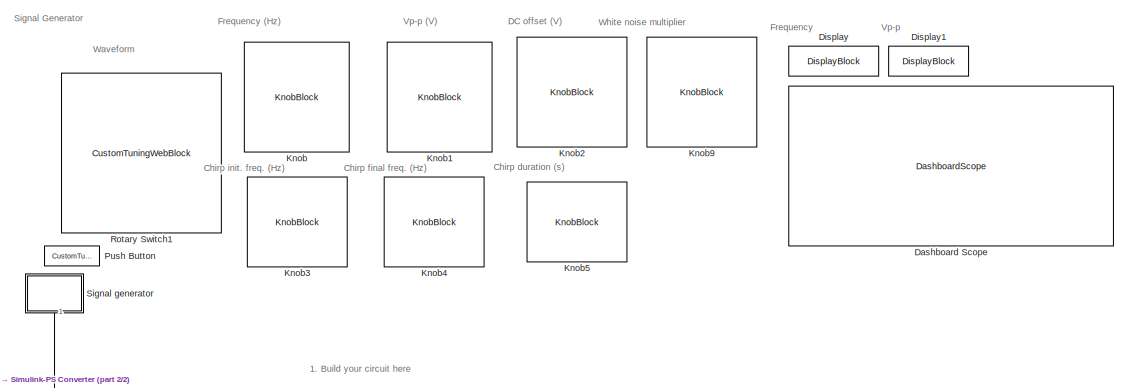
[diagram: root canvas - part 1/2, full width, top band]
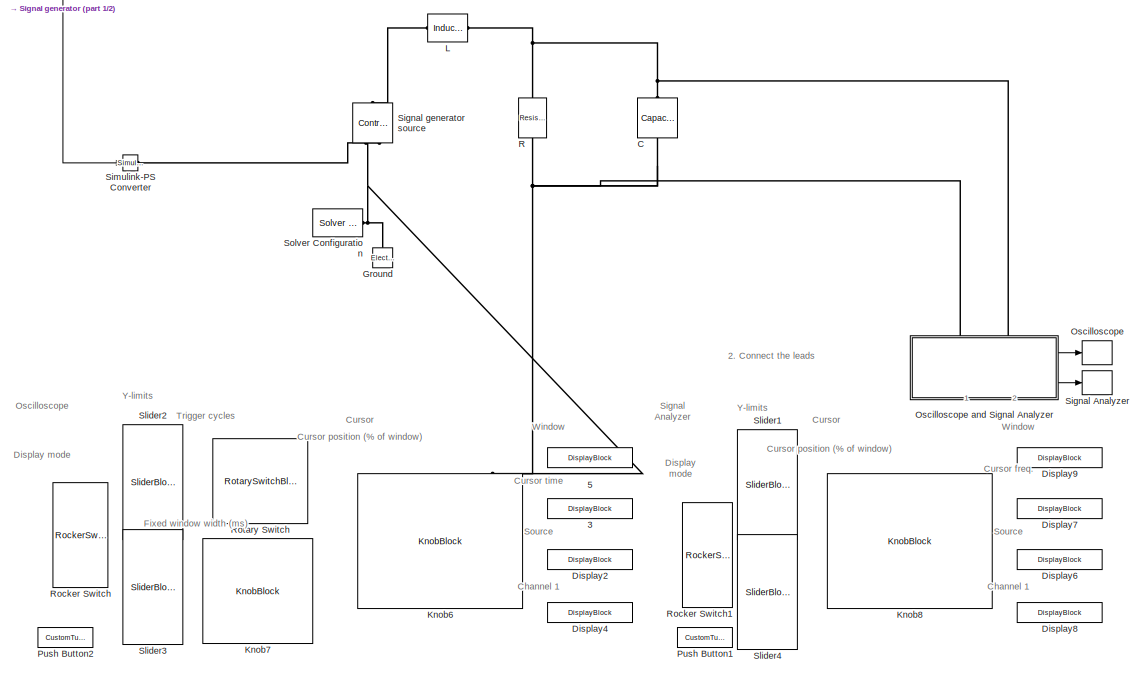
[diagram: root canvas - part 2/2, full width, bottom band]
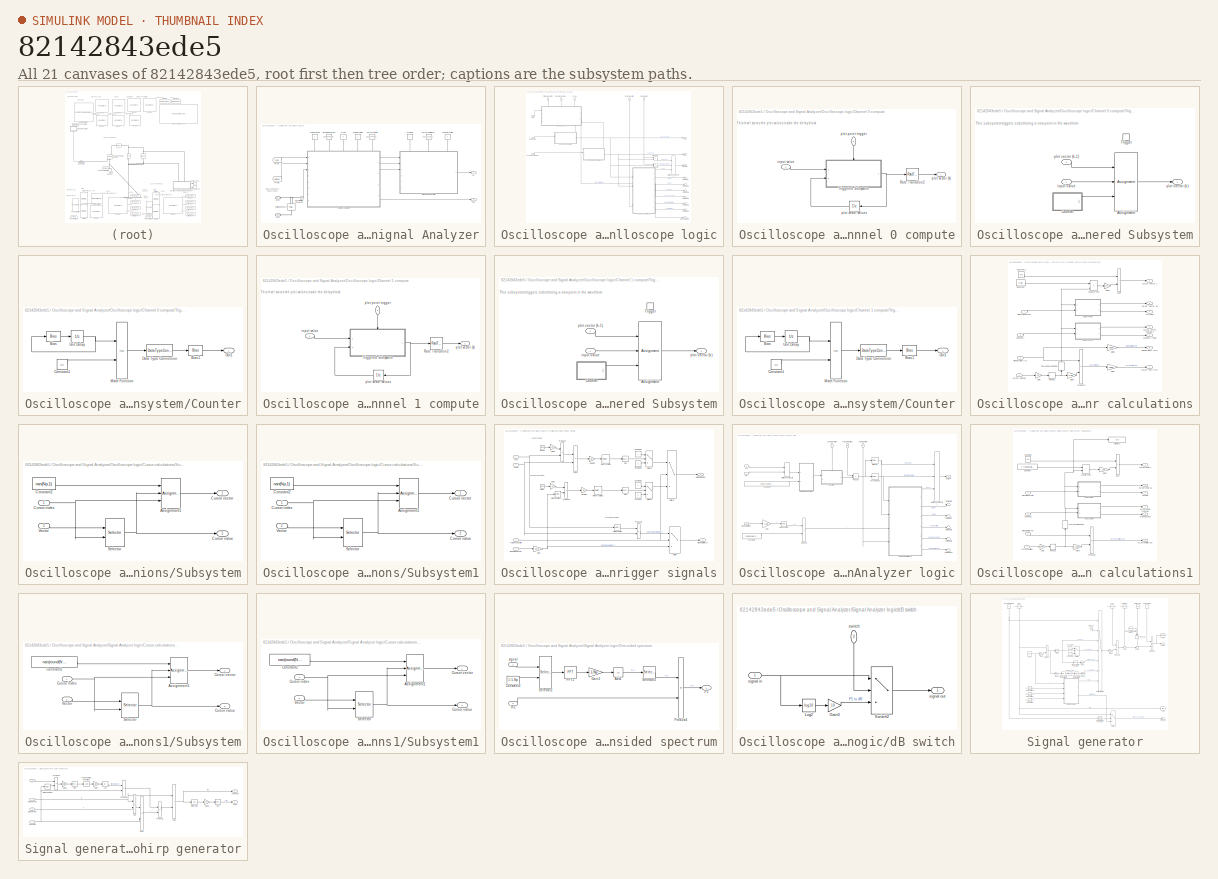
[diagram: thumbnail index - all 21 canvases of the model, root first then tree order]
MODEL slx_82142843ede5
KIND model
CONFIG AbsTol = auto
CONFIG EnableMultiTasking = off
CONFIG FixedStep = auto
CONFIG MaxStep = 0.001
CONFIG MinStep = auto
CONFIG PostLoadFcn = % Resize the model window\nset(0,"Units","pixels")\nsSize = get(0,"screensize");\nspace =  sSize(4)*0.028;\nset_param(gcs,'location',  [1,1,round(sSize(3)/2),sSize(4)-space]);\n% Reset the zoom\nset_param(gcs, 'ZoomFactor','FitSystem')\n\n% Resize the windows\nspace = sSize(4)*0.032;\nSAsize = ['[',num2str(round([(sSize(3)/2)+1,...\n                    space,(sSize(3)/2)-1,sSize(4)/2-space*1.25])),']'];\nDSOs...<+246ch>
CONFIG RelTol = 1e-3
CONFIG SampleTimeConstraint = Unconstrained
CONFIG SolverName = VariableStepAuto
CONFIG StartTime = 0.0
CONFIG StopTime = inf
BLOCK [DisplayBlock] 3
  Alignment = Right
  Format = Custom
  FormatString = %0.2f ms
  LabelPosition = Hide
  NameLocation = left
  Transparency = 1
BLOCK [DisplayBlock] 5
  Alignment = Right
  Format = Custom
  FormatString = %0.2f ms
  LabelPosition = Hide
  Transparency = 1
BLOCK [Reference] C  REF=fl_lib/Electrical/Electrical Elements/Capacitor
  AttributesFormatString = %<c> %<c_unit>
  NameLocation = left
  Ports = [0, 0, 0, 0, 0, 1, 1]
  SourceBlock = fl_lib/Electrical/Electrical Elements/Capacitor
  SourceProductBaseCode = SS
  SourceType = Capacitor
BLOCK [DashboardScope] Dashboard Scope
  ScaleAtStop = off
  TimeSpan = 0.20000000000000001
  Ymax = 5
  Ymin = -5
BLOCK [DisplayBlock] Display
  Alignment = Right
  Format = Custom
  FormatString = %0.2f Hz
  LabelPosition = Hide
  Transparency = 1
BLOCK [DisplayBlock] Display1
  Alignment = Right
  Format = Custom
  FormatString = %0.2f V
  LabelPosition = Hide
  Transparency = 1
BLOCK [DisplayBlock] Display2
  Alignment = Right
  Format = Custom
  FormatString = %0.2f V
  LabelPosition = Hide
  Transparency = 1
BLOCK [DisplayBlock] Display4
  Alignment = Right
  Format = Custom
  FormatString = %0.2f V
  LabelPosition = Hide
  Transparency = 1
BLOCK [DisplayBlock] Display6
  Alignment = Right
  Format = Custom
  FormatString = %0.2f
  LabelPosition = Hide
  Transparency = 1
BLOCK [DisplayBlock] Display7
  Alignment = Right
  Format = Custom
  FormatString = %0.1f Hz
  LabelPosition = Hide
  Transparency = 1
BLOCK [DisplayBlock] Display8
  Alignment = Right
  Format = Custom
  FormatString = %0.2f
  LabelPosition = Hide
  Transparency = 1
BLOCK [DisplayBlock] Display9
  Alignment = Right
  Format = Custom
  FormatString = %0.1f Hz
  LabelPosition = Hide
  Transparency = 1
BLOCK [Reference] Ground  REF=fl_lib/Electrical/Electrical Elements/Electrical Reference
  Ports = [0, 0, 0, 0, 0, 1]
  SourceBlock = fl_lib/Electrical/Electrical Elements/Electrical Reference
  SourceProductBaseCode = SS
  SourceType = Electrical Reference
BLOCK [KnobBlock] Knob
  LabelPosition = Hide
  ScaleMax = 240
  TickInterval = 60
BLOCK [KnobBlock] Knob1
  LabelPosition = Hide
  NameLocation = top
  ScaleMax = 10
  TickInterval = 2
BLOCK [KnobBlock] Knob2
  LabelPosition = Hide
  NameLocation = top
  ScaleMax = 5
  ScaleMin = -5
  TickInterval = 2.5
BLOCK [KnobBlock] Knob3
  LabelPosition = Hide
  ScaleMax = 1000
  TickInterval = 200
BLOCK [KnobBlock] Knob4
  LabelPosition = Hide
  ScaleMax = 1000
  TickInterval = 200
BLOCK [KnobBlock] Knob5
  LabelPosition = Hide
  NameLocation = top
  ScaleMax = 1.1
  ScaleMin = 0.1
  TickInterval = 0.2
BLOCK [KnobBlock] Knob6
  LabelPosition = Hide
  ScaleMax = 1
  TickInterval = 0.2
BLOCK [KnobBlock] Knob7
  LabelPosition = Hide
  ScaleMax = 500
  TickInterval = 100
BLOCK [KnobBlock] Knob8
  LabelPosition = Hide
  ScaleMax = 1
  TickInterval = 0.2
BLOCK [KnobBlock] Knob9
  LabelPosition = Hide
  NameLocation = top
  ScaleMax = 10
  ScaleMin = 1e-3
  ScaleType = Log
BLOCK [Reference] L  REF=fl_lib/Electrical/Electrical Elements/Inductor
  AttributesFormatString = %<l> %<l_unit>
  Ports = [0, 0, 0, 0, 0, 1, 1]
  SourceBlock = fl_lib/Electrical/Electrical Elements/Inductor
  SourceProductBaseCode = SS
  SourceType = Inductor
BLOCK [ArrayPlot] Oscilloscope
  AxesScaling = Manual
  GraphicalSettings = {"Style":{"BackgroundColor":[0.1568627450980392,0.1568627450980392,0.1568627450980392],"AxesColor":[0,0,0],"LabelsColor":[0.6862745098039216,0.6862745098039216,0.6862745098039216],"LineStyle":["-","-","-"],"LineColor":[[1,1,0.06666666666666667],[0.07450980392156863,0.6235294117647059,1],[1,0.4117647058823529,0.1607843137254902]],"LineWidth":[1.5,1.5,1.5],"Marker":["none","none","none"],"FontSize":...<+9ch>
  MaximizeAxes = off
  NameLocation = top
  PlotType = Line
  Ports = [1]
  ShowLegend = on
  Visible = on
  WindowPosition = [1281.000000,743.000000,1279.000000,662.000000,]
  YLimits = [-7.581699346405228,7.320261437908496]
BLOCK [SubSystem] Oscilloscope and Signal Analyzer
  PortSchema = {"entries":[{"content":{"sides":[{"content":{"connectorIds":["LConn1","LConn2"]},"type":"ConnectorPlacement.EquallySpacedRectSide","uuid":"4f80a8c2-824d-4211-993f-82229c097a2c"},{"content":{"connectorIds":[],"side":"RIGHT"},"type":"ConnectorPlacement.EquallySpacedRectSide","uuid":"5753fbaa-289b-4ec3-ae4c-c42164e19fcd"},{"content":{"connectorIds":["Out1","Out2"],"side":"TOP"},"type":"ConnectorPlace...<+259ch>
  Ports = [0, 2, 0, 0, 0, 2]
  RequestExecContextInheritance = off
BLOCK [PMIOPort] Oscilloscope and Signal Analyzer/Ch 1 +
  Port = 2
  Side = Left
BLOCK [PMIOPort] Oscilloscope and Signal Analyzer/Ch 1 -
  Side = Left
BLOCK [Constant] Oscilloscope and Signal Analyzer/Cursor position
  NameLocation = top
  Value = 0.1197049967447917
BLOCK [Constant] Oscilloscope and Signal Analyzer/Cursor position SA
  NameLocation = top
  Value = 0.1071220016479492
BLOCK [Constant] Oscilloscope and Signal Analyzer/Cycles
  NameLocation = top
  Value = 2
BLOCK [Outport] Oscilloscope and Signal Analyzer/DSO
BLOCK [Constant] Oscilloscope and Signal Analyzer/Fixed window (ms)
  NameLocation = top
  Value = 15.8654530843099
BLOCK [From] Oscilloscope and Signal Analyzer/From
  GotoTag = freq
  TagVisibility = global
BLOCK [From] Oscilloscope and Signal Analyzer/From1
  GotoTag = siggen
  TagVisibility = global
BLOCK [Constant] Oscilloscope and Signal Analyzer/O Power switch
  NameLocation = top
BLOCK [SubSystem] Oscilloscope and Signal Analyzer/Oscilloscope logic
  PortSchema = {"entries":[{"content":{"sides":[{"content":{"connectorIds":["In1","In2","In3"]},"type":"ConnectorPlacement.EquallySpacedRectSide","uuid":"f2d86859-c2b3-4aba-b253-ab7209c6bd09"},{"content":{"connectorIds":["Out1","Out2","Out3","Out4"],"side":"RIGHT"},"type":"ConnectorPlacement.EquallySpacedRectSide","uuid":"576f7b6f-22d6-428c-bce1-54cbe46983a0"},{"content":{"connectorIds":["In4","In5","In6","In7",...<+302ch>
  Ports = [8, 4]
  RequestExecContextInheritance = off
BLOCK [Outport] Oscilloscope and Signal Analyzer/Oscilloscope logic/Ch 1
  Port = 2
BLOCK [SubSystem] Oscilloscope and Signal Analyzer/Oscilloscope logic/Channel 0 compute
  PortSchema = {"entries":[{"content":{"sides":[{"content":{"connectorIds":["In1"]},"type":"ConnectorPlacement.EquallySpacedRectSide","uuid":"56eea059-d5e9-4d95-b7d9-83a317b3103e"},{"content":{"connectorIds":["Out1"],"side":"RIGHT"},"type":"ConnectorPlacement.EquallySpacedRectSide","uuid":"fd8b8cd5-6def-4d8f-87ca-646372cc7fbe"},{"content":{"connectorIds":["In2"],"side":"TOP"},"type":"ConnectorPlacement.EquallySp...<+389ch>
  Ports = [2, 1]
  RequestExecContextInheritance = off
BLOCK [RateTransition] Oscilloscope and Signal Analyzer/Oscilloscope logic/Channel 0 compute/Rate Transition2
  InitialCondition = zeros(Np,1)
  OutPortSampleTime = 1/refreshRate
BLOCK [SubSystem] Oscilloscope and Signal Analyzer/Oscilloscope logic/Channel 0 compute/Triggered Subsystem
  Ports = [2, 1, 0, 1]
  RequestExecContextInheritance = off
  TreatAsAtomicUnit = on
BLOCK [Assignment] Oscilloscope and Signal Analyzer/Oscilloscope logic/Channel 0 compute/Triggered Subsystem/Assignment
  DiagnosticForDimensions = Warning
  IndexOptions = Index vector (port)
  Indices = 1
  OutputSizes = 1
  Ports = [3, 1]
BLOCK [SubSystem] Oscilloscope and Signal Analyzer/Oscilloscope logic/Channel 0 compute/Triggered Subsystem/Counter
  Ports = [0, 1]
  RequestExecContextInheritance = off
BLOCK [Bias] Oscilloscope and Signal Analyzer/Oscilloscope logic/Channel 0 compute/Triggered Subsystem/Counter/Bias
  Bias = 1
  SaturateOnIntegerOverflow = off
BLOCK [Bias] Oscilloscope and Signal Analyzer/Oscilloscope logic/Channel 0 compute/Triggered Subsystem/Counter/Bias1
  Bias = 1
  SaturateOnIntegerOverflow = off
BLOCK [Constant] Oscilloscope and Signal Analyzer/Oscilloscope logic/Channel 0 compute/Triggered Subsystem/Counter/Constant1
  OutDataTypeStr = int16
  Value = Np
BLOCK [DataTypeConversion] Oscilloscope and Signal Analyzer/Oscilloscope logic/Channel 0 compute/Triggered Subsystem/Counter/Data Type Conversion
  OutDataTypeStr = int16
  RndMeth = Floor
  SaturateOnIntegerOverflow = off
BLOCK [Math] Oscilloscope and Signal Analyzer/Oscilloscope logic/Channel 0 compute/Triggered Subsystem/Counter/Math Function
  Operator = mod
  Ports = [2, 1]
BLOCK [Outport] Oscilloscope and Signal Analyzer/Oscilloscope logic/Channel 0 compute/Triggered Subsystem/Counter/Out1
BLOCK [UnitDelay] Oscilloscope and Signal Analyzer/Oscilloscope logic/Channel 0 compute/Triggered Subsystem/Counter/Unit Delay
  HasFrameUpgradeWarning = on
  SampleTime = -1
BLOCK [TriggerPort] Oscilloscope and Signal Analyzer/Oscilloscope logic/Channel 0 compute/Triggered Subsystem/Trigger
  Ports = []
  StatesWhenEnabling = held
  VariantControl = (inherit)
BLOCK [Inport] Oscilloscope and Signal Analyzer/Oscilloscope logic/Channel 0 compute/Triggered Subsystem/input value
BLOCK [Outport] Oscilloscope and Signal Analyzer/Oscilloscope logic/Channel 0 compute/Triggered Subsystem/plot vector (k)
BLOCK [Inport] Oscilloscope and Signal Analyzer/Oscilloscope logic/Channel 0 compute/Triggered Subsystem/plot vector (k-1)
  Port = 2
BLOCK [Inport] Oscilloscope and Signal Analyzer/Oscilloscope logic/Channel 0 compute/input value
BLOCK [Inport] Oscilloscope and Signal Analyzer/Oscilloscope logic/Channel 0 compute/plot point trigger
  NameLocation = left
  Port = 2
BLOCK [Outport] Oscilloscope and Signal Analyzer/Oscilloscope logic/Channel 0 compute/plot vector (k)
BLOCK [UnitDelay] Oscilloscope and Signal Analyzer/Oscilloscope logic/Channel 0 compute/plot vector values
  HasFrameUpgradeWarning = on
  InitialCondition = zeros(Np,1)
  SampleTime = -1
BLOCK [SubSystem] Oscilloscope and Signal Analyzer/Oscilloscope logic/Channel 1 compute
  PortSchema = {"entries":[{"content":{"sides":[{"content":{"connectorIds":["In1"]},"type":"ConnectorPlacement.EquallySpacedRectSide","uuid":"56eea059-d5e9-4d95-b7d9-83a317b3103e"},{"content":{"connectorIds":["Out1"],"side":"RIGHT"},"type":"ConnectorPlacement.EquallySpacedRectSide","uuid":"fd8b8cd5-6def-4d8f-87ca-646372cc7fbe"},{"content":{"connectorIds":["In2"],"side":"TOP"},"type":"ConnectorPlacement.EquallySp...<+389ch>
  Ports = [2, 1]
  RequestExecContextInheritance = off
BLOCK [RateTransition] Oscilloscope and Signal Analyzer/Oscilloscope logic/Channel 1 compute/Rate Transition2
  InitialCondition = zeros(Np,1)
  OutPortSampleTime = 1/refreshRate
BLOCK [SubSystem] Oscilloscope and Signal Analyzer/Oscilloscope logic/Channel 1 compute/Triggered Subsystem
  Ports = [2, 1, 0, 1]
  RequestExecContextInheritance = off
  TreatAsAtomicUnit = on
BLOCK [Assignment] Oscilloscope and Signal Analyzer/Oscilloscope logic/Channel 1 compute/Triggered Subsystem/Assignment
  DiagnosticForDimensions = Warning
  IndexOptions = Index vector (port)
  Indices = 1
  OutputSizes = 1
  Ports = [3, 1]
BLOCK [SubSystem] Oscilloscope and Signal Analyzer/Oscilloscope logic/Channel 1 compute/Triggered Subsystem/Counter
  Ports = [0, 1]
  RequestExecContextInheritance = off
BLOCK [Bias] Oscilloscope and Signal Analyzer/Oscilloscope logic/Channel 1 compute/Triggered Subsystem/Counter/Bias
  Bias = 1
  SaturateOnIntegerOverflow = off
BLOCK [Bias] Oscilloscope and Signal Analyzer/Oscilloscope logic/Channel 1 compute/Triggered Subsystem/Counter/Bias1
  Bias = 1
  SaturateOnIntegerOverflow = off
BLOCK [Constant] Oscilloscope and Signal Analyzer/Oscilloscope logic/Channel 1 compute/Triggered Subsystem/Counter/Constant1
  OutDataTypeStr = int16
  Value = Np
BLOCK [DataTypeConversion] Oscilloscope and Signal Analyzer/Oscilloscope logic/Channel 1 compute/Triggered Subsystem/Counter/Data Type Conversion
  OutDataTypeStr = int16
  RndMeth = Floor
  SaturateOnIntegerOverflow = off
BLOCK [Math] Oscilloscope and Signal Analyzer/Oscilloscope logic/Channel 1 compute/Triggered Subsystem/Counter/Math Function
  Operator = mod
  Ports = [2, 1]
BLOCK [Outport] Oscilloscope and Signal Analyzer/Oscilloscope logic/Channel 1 compute/Triggered Subsystem/Counter/Out1
BLOCK [UnitDelay] Oscilloscope and Signal Analyzer/Oscilloscope logic/Channel 1 compute/Triggered Subsystem/Counter/Unit Delay
  HasFrameUpgradeWarning = on
  SampleTime = -1
BLOCK [TriggerPort] Oscilloscope and Signal Analyzer/Oscilloscope logic/Channel 1 compute/Triggered Subsystem/Trigger
  Ports = []
  StatesWhenEnabling = held
  VariantControl = (inherit)
BLOCK [Inport] Oscilloscope and Signal Analyzer/Oscilloscope logic/Channel 1 compute/Triggered Subsystem/input value
BLOCK [Outport] Oscilloscope and Signal Analyzer/Oscilloscope logic/Channel 1 compute/Triggered Subsystem/plot vector (k)
BLOCK [Inport] Oscilloscope and Signal Analyzer/Oscilloscope logic/Channel 1 compute/Triggered Subsystem/plot vector (k-1)
  Port = 2
BLOCK [Inport] Oscilloscope and Signal Analyzer/Oscilloscope logic/Channel 1 compute/input value
BLOCK [Inport] Oscilloscope and Signal Analyzer/Oscilloscope logic/Channel 1 compute/plot point trigger
  NameLocation = left
  Port = 2
BLOCK [Outport] Oscilloscope and Signal Analyzer/Oscilloscope logic/Channel 1 compute/plot vector (k)
BLOCK [UnitDelay] Oscilloscope and Signal Analyzer/Oscilloscope logic/Channel 1 compute/plot vector values
  HasFrameUpgradeWarning = on
  InitialCondition = zeros(Np,1)
  SampleTime = -1
BLOCK [SubSystem] Oscilloscope and Signal Analyzer/Oscilloscope logic/Cursor calculations
  Ports = [4, 7]
  RequestExecContextInheritance = off
BLOCK [Inport] Oscilloscope and Signal Analyzer/Oscilloscope logic/Cursor calculations/Channel 1
  Port = 2
BLOCK [Constant] Oscilloscope and Signal Analyzer/Oscilloscope logic/Cursor calculations/Constant
  Value = 1:Np
BLOCK [Constant] Oscilloscope and Signal Analyzer/Oscilloscope logic/Cursor calculations/Constant1
  NameLocation = top
  Value = -100
BLOCK [Outport] Oscilloscope and Signal Analyzer/Oscilloscope logic/Cursor calculations/Cursor vector 1
BLOCK [Outport] Oscilloscope and Signal Analyzer/Oscilloscope logic/Cursor calculations/Cursor vector channel 1
  Port = 3
BLOCK [Outport] Oscilloscope and Signal Analyzer/Oscilloscope logic/Cursor calculations/Cursor vector sg
  Port = 2
BLOCK [Gain] Oscilloscope and Signal Analyzer/Oscilloscope logic/Cursor calculations/Gain
  Gain = Np
BLOCK [Gain] Oscilloscope and Signal Analyzer/Oscilloscope logic/Cursor calculations/Gain1
  Gain = 1000
BLOCK [Gain] Oscilloscope and Signal Analyzer/Oscilloscope logic/Cursor calculations/Gain2
  Gain = 1e4
BLOCK [Gain] Oscilloscope and Signal Analyzer/Oscilloscope logic/Cursor calculations/Gain4
  Gain = 1/Np
BLOCK [Gain] Oscilloscope and Signal Analyzer/Oscilloscope logic/Cursor calculations/Gain5
  Gain = 1000
BLOCK [RelationalOperator] Oscilloscope and Signal Analyzer/Oscilloscope logic/Cursor calculations/GreaterThan
  InputSameDT = off
  Operator = >
  OutDataTypeStr = boolean
  Ports = [2, 1]
  RndMeth = Simplest
BLOCK [Product] Oscilloscope and Signal Analyzer/Oscilloscope logic/Cursor calculations/Product3
  Ports = [2, 1]
BLOCK [Rounding] Oscilloscope and Signal Analyzer/Oscilloscope logic/Cursor calculations/Round1
  Operator = round
BLOCK [Inport] Oscilloscope and Signal Analyzer/Oscilloscope logic/Cursor calculations/Signal Generator
BLOCK [SubSystem] Oscilloscope and Signal Analyzer/Oscilloscope logic/Cursor calculations/Subsystem
  Ports = [2, 2]
  RequestExecContextInheritance = off
BLOCK [Assignment] Oscilloscope and Signal Analyzer/Oscilloscope logic/Cursor calculations/Subsystem/Assignment1
  DiagnosticForDimensions = Warning
  IndexOptions = Index vector (port)
  Indices = 1
  OutputSizes = 1
  Ports = [3, 1]
BLOCK [Constant] Oscilloscope and Signal Analyzer/Oscilloscope logic/Cursor calculations/Subsystem/Constant2
  Value = nan(Np,1)
BLOCK [Inport] Oscilloscope and Signal Analyzer/Oscilloscope logic/Cursor calculations/Subsystem/Cursor index
BLOCK [Outport] Oscilloscope and Signal Analyzer/Oscilloscope logic/Cursor calculations/Subsystem/Cursor value
  Port = 2
BLOCK [Outport] Oscilloscope and Signal Analyzer/Oscilloscope logic/Cursor calculations/Subsystem/Cursor vector 
BLOCK [Selector] Oscilloscope and Signal Analyzer/Oscilloscope logic/Cursor calculations/Subsystem/Selector
  IndexOptions = Index vector (port)
  Indices = [1 3]
  InputPortWidth = Np
  OutputSizes = 1
  Ports = [2, 1]
BLOCK [Inport] Oscilloscope and Signal Analyzer/Oscilloscope logic/Cursor calculations/Subsystem/Vector
  Port = 2
BLOCK [SubSystem] Oscilloscope and Signal Analyzer/Oscilloscope logic/Cursor calculations/Subsystem1
  Ports = [2, 2]
  RequestExecContextInheritance = off
BLOCK [Assignment] Oscilloscope and Signal Analyzer/Oscilloscope logic/Cursor calculations/Subsystem1/Assignment1
  DiagnosticForDimensions = Warning
  IndexOptions = Index vector (port)
  Indices = 1
  OutputSizes = 1
  Ports = [3, 1]
BLOCK [Constant] Oscilloscope and Signal Analyzer/Oscilloscope logic/Cursor calculations/Subsystem1/Constant2
  Value = nan(Np,1)
BLOCK [Inport] Oscilloscope and Signal Analyzer/Oscilloscope logic/Cursor calculations/Subsystem1/Cursor index
BLOCK [Outport] Oscilloscope and Signal Analyzer/Oscilloscope logic/Cursor calculations/Subsystem1/Cursor value
  Port = 2
BLOCK [Outport] Oscilloscope and Signal Analyzer/Oscilloscope logic/Cursor calculations/Subsystem1/Cursor vector 
BLOCK [Selector] Oscilloscope and Signal Analyzer/Oscilloscope logic/Cursor calculations/Subsystem1/Selector
  IndexOptions = Index vector (port)
  Indices = [1 3]
  InputPortWidth = Np
  OutputSizes = 1
  Ports = [2, 1]
BLOCK [Inport] Oscilloscope and Signal Analyzer/Oscilloscope logic/Cursor calculations/Subsystem1/Vector
  Port = 2
BLOCK [Sum] Oscilloscope and Signal Analyzer/Oscilloscope logic/Cursor calculations/Sum
  IconShape = rectangular
  Ports = [2, 1]
BLOCK [Outport] Oscilloscope and Signal Analyzer/Oscilloscope logic/Cursor calculations/channel 1 value
  Port = 5
BLOCK [Inport] Oscilloscope and Signal Analyzer/Oscilloscope logic/Cursor calculations/cursor position
  Port = 4
BLOCK [Outport] Oscilloscope and Signal Analyzer/Oscilloscope logic/Cursor calculations/cursor time (ms)
  Port = 7
BLOCK [Bias] Oscilloscope and Signal Analyzer/Oscilloscope logic/Cursor calculations/one-based indexing
  Bias = 1
  NameLocation = left
  SaturateOnIntegerOverflow = off
BLOCK [Outport] Oscilloscope and Signal Analyzer/Oscilloscope logic/Cursor calculations/sg value
  Port = 4
BLOCK [Outport] Oscilloscope and Signal Analyzer/Oscilloscope logic/Cursor calculations/window width (ms)
  Port = 6
BLOCK [Inport] Oscilloscope and Signal Analyzer/Oscilloscope logic/Cursor calculations/window width (s)
  Port = 3
BLOCK [Inport] Oscilloscope and Signal Analyzer/Oscilloscope logic/Cursor position
  NameLocation = top
  Port = 8
BLOCK [Inport] Oscilloscope and Signal Analyzer/Oscilloscope logic/Cycles
  NameLocation = top
  Port = 6
BLOCK [Concatenate] Oscilloscope and Signal Analyzer/Oscilloscope logic/Matrix Concatenate2
  ConcatenateDimension = 2
  Mode = Multidimensional array
  NumInputs = 3
  Ports = [3, 1]
BLOCK [Outport] Oscilloscope and Signal Analyzer/Oscilloscope logic/Outport1
  Port = 4
BLOCK [Inport] Oscilloscope and Signal Analyzer/Oscilloscope logic/Power switch
  NameLocation = top
  Port = 7
BLOCK [Product] Oscilloscope and Signal Analyzer/Oscilloscope logic/Product1
  Ports = [2, 1]
BLOCK [Product] Oscilloscope and Signal Analyzer/Oscilloscope logic/Product2
  Ports = [2, 1]
BLOCK [Outport] Oscilloscope and Signal Analyzer/Oscilloscope logic/SG
BLOCK [Terminator] Oscilloscope and Signal Analyzer/Oscilloscope logic/Terminator
BLOCK [Terminator] Oscilloscope and Signal Analyzer/Oscilloscope logic/Terminator1
BLOCK [Terminator] Oscilloscope and Signal Analyzer/Oscilloscope logic/Terminator2
BLOCK [Terminator] Oscilloscope and Signal Analyzer/Oscilloscope logic/Terminator3
BLOCK [Terminator] Oscilloscope and Signal Analyzer/Oscilloscope logic/Terminator4
BLOCK [Terminator] Oscilloscope and Signal Analyzer/Oscilloscope logic/Terminator5
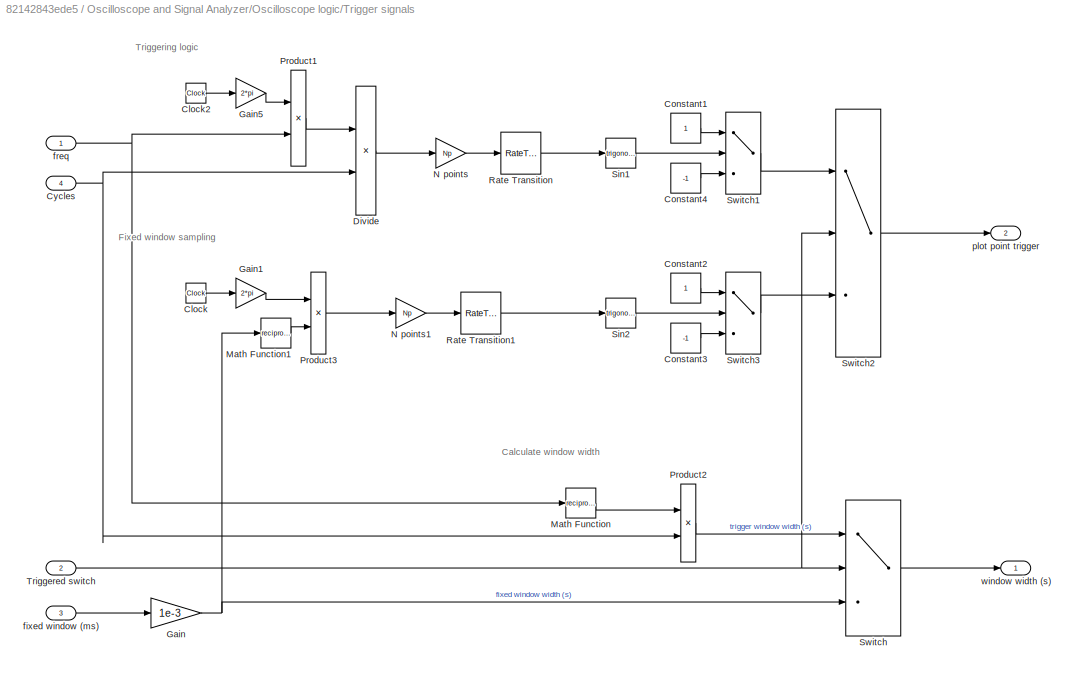
BLOCK [SubSystem] Oscilloscope and Signal Analyzer/Oscilloscope logic/Trigger signals
  NameLocation = right
  PortSchema = {"entries":[{"content":{"sides":[{"content":{"connectorIds":["In1"]},"type":"ConnectorPlacement.EquallySpacedRectSide","uuid":"b92255b7-066e-487b-9e0c-e19692fc940f"},{"content":{"connectorIds":[],"side":"RIGHT"},"type":"ConnectorPlacement.EquallySpacedRectSide","uuid":"cb964d42-f40b-466c-b45b-853437324272"},{"content":{"connectorIds":["In2","In3","In4"],"side":"TOP"},"type":"ConnectorPlacement.Equ...<+408ch>
  Ports = [4, 2]
  RequestExecContextInheritance = off
BLOCK [Clock] Oscilloscope and Signal Analyzer/Oscilloscope logic/Trigger signals/Clock
BLOCK [Clock] Oscilloscope and Signal Analyzer/Oscilloscope logic/Trigger signals/Clock2
BLOCK [Constant] Oscilloscope and Signal Analyzer/Oscilloscope logic/Trigger signals/Constant1
  SampleTime = 0
BLOCK [Constant] Oscilloscope and Signal Analyzer/Oscilloscope logic/Trigger signals/Constant2
  SampleTime = 0
BLOCK [Constant] Oscilloscope and Signal Analyzer/Oscilloscope logic/Trigger signals/Constant3
  SampleTime = 0
  Value = -1
BLOCK [Constant] Oscilloscope and Signal Analyzer/Oscilloscope logic/Trigger signals/Constant4
  SampleTime = 0
  Value = -1
BLOCK [Inport] Oscilloscope and Signal Analyzer/Oscilloscope logic/Trigger signals/Cycles
  Port = 4
BLOCK [Product] Oscilloscope and Signal Analyzer/Oscilloscope logic/Trigger signals/Divide
  Inputs = */
  Ports = [2, 1]
BLOCK [Gain] Oscilloscope and Signal Analyzer/Oscilloscope logic/Trigger signals/Gain
  Gain = 1e-3
BLOCK [Gain] Oscilloscope and Signal Analyzer/Oscilloscope logic/Trigger signals/Gain1
  Gain = 2*pi
BLOCK [Gain] Oscilloscope and Signal Analyzer/Oscilloscope logic/Trigger signals/Gain5
  Gain = 2*pi
BLOCK [Math] Oscilloscope and Signal Analyzer/Oscilloscope logic/Trigger signals/Math Function
  Operator = reciprocal
  Ports = [1, 1]
BLOCK [Math] Oscilloscope and Signal Analyzer/Oscilloscope logic/Trigger signals/Math Function1
  Operator = reciprocal
  Ports = [1, 1]
BLOCK [Gain] Oscilloscope and Signal Analyzer/Oscilloscope logic/Trigger signals/N points
  Gain = Np
BLOCK [Gain] Oscilloscope and Signal Analyzer/Oscilloscope logic/Trigger signals/N points1
  Gain = Np
BLOCK [Product] Oscilloscope and Signal Analyzer/Oscilloscope logic/Trigger signals/Product1
  Ports = [2, 1]
BLOCK [Product] Oscilloscope and Signal Analyzer/Oscilloscope logic/Trigger signals/Product2
  Ports = [2, 1]
BLOCK [Product] Oscilloscope and Signal Analyzer/Oscilloscope logic/Trigger signals/Product3
  Ports = [2, 1]
BLOCK [RateTransition] Oscilloscope and Signal Analyzer/Oscilloscope logic/Trigger signals/Rate Transition
  OutPortSampleTime = plot_dt
BLOCK [RateTransition] Oscilloscope and Signal Analyzer/Oscilloscope logic/Trigger signals/Rate Transition1
  OutPortSampleTime = plot_dt
BLOCK [Trigonometry] Oscilloscope and Signal Analyzer/Oscilloscope logic/Trigger signals/Sin1
  Ports = [1, 1]
BLOCK [Trigonometry] Oscilloscope and Signal Analyzer/Oscilloscope logic/Trigger signals/Sin2
  Ports = [1, 1]
BLOCK [Switch] Oscilloscope and Signal Analyzer/Oscilloscope logic/Trigger signals/Switch
  Criteria = u2 > Threshold
  InputSameDT = off
  SaturateOnIntegerOverflow = off
BLOCK [Switch] Oscilloscope and Signal Analyzer/Oscilloscope logic/Trigger signals/Switch1
  Criteria = u2 > Threshold
  InputSameDT = off
  SaturateOnIntegerOverflow = off
BLOCK [Switch] Oscilloscope and Signal Analyzer/Oscilloscope logic/Trigger signals/Switch2
  Criteria = u2 > Threshold
  InputSameDT = off
  SaturateOnIntegerOverflow = off
BLOCK [Switch] Oscilloscope and Signal Analyzer/Oscilloscope logic/Trigger signals/Switch3
  Criteria = u2 > Threshold
  InputSameDT = off
  SaturateOnIntegerOverflow = off
BLOCK [Inport] Oscilloscope and Signal Analyzer/Oscilloscope logic/Trigger signals/Triggered switch
  Port = 2
BLOCK [Inport] Oscilloscope and Signal Analyzer/Oscilloscope logic/Trigger signals/fixed window (ms)
  Port = 3
BLOCK [Inport] Oscilloscope and Signal Analyzer/Oscilloscope logic/Trigger signals/freq
BLOCK [Outport] Oscilloscope and Signal Analyzer/Oscilloscope logic/Trigger signals/plot point trigger
  Port = 2
BLOCK [Outport] Oscilloscope and Signal Analyzer/Oscilloscope logic/Trigger signals/window width (s)
BLOCK [Inport] Oscilloscope and Signal Analyzer/Oscilloscope logic/Triggered switch
  NameLocation = top
  Port = 4
BLOCK [Inport] Oscilloscope and Signal Analyzer/Oscilloscope logic/ch1 measurement
  Port = 3
BLOCK [Inport] Oscilloscope and Signal Analyzer/Oscilloscope logic/fixed window (ms)
  NameLocation = top
  Port = 5
BLOCK [Inport] Oscilloscope and Signal Analyzer/Oscilloscope logic/freq
BLOCK [Inport] Oscilloscope and Signal Analyzer/Oscilloscope logic/input value
  Port = 2
BLOCK [Outport] Oscilloscope and Signal Analyzer/Oscilloscope logic/window width (s)
  Port = 3
BLOCK [Constant] Oscilloscope and Signal Analyzer/PS power switch
  NameLocation = top
BLOCK [Reference] Oscilloscope and Signal Analyzer/PS-Simulink Converter  REF=nesl_utility/PS-Simulink
Converter
  Ports = [0, 1, 0, 0, 0, 1]
  SourceBlock = nesl_utility/PS-Simulink\nConverter
  SourceProductBaseCode = PW,SS
  SourceType = PS-Simulink\nConverter
BLOCK [Outport] Oscilloscope and Signal Analyzer/SA
  Port = 2
BLOCK [Constant] Oscilloscope and Signal Analyzer/SA Mode
  NameLocation = top
BLOCK [SubSystem] Oscilloscope and Signal Analyzer/Signal Analyzer logic
  PortSchema = {"entries":[{"content":{"sides":[{"content":{"connectorIds":["In1","In2","In3"]},"type":"ConnectorPlacement.EquallySpacedRectSide","uuid":"bb84044c-62d4-45e3-980b-d84da8bc32f8"},{"content":{"connectorIds":["Out1"],"side":"RIGHT"},"type":"ConnectorPlacement.EquallySpacedRectSide","uuid":"01e33b7c-25bd-4396-88e8-c83dc9c90d0e"},{"content":{"connectorIds":["In4","In5","In6"],"side":"TOP"},"type":"Conn...<+269ch>
  Ports = [6, 1]
  RequestExecContextInheritance = off
BLOCK [Inport] Oscilloscope and Signal Analyzer/Signal Analyzer logic/Ch 1
  Port = 2
BLOCK [Constant] Oscilloscope and Signal Analyzer/Signal Analyzer logic/Constant2
  Value = round(Np/2)/Np
BLOCK [Constant] Oscilloscope and Signal Analyzer/Signal Analyzer logic/Constant4
  Value = ones(round(Np/2)+1,2) + [0,0;ones(round(Np/2)+1-2,2);0,0]
BLOCK [SubSystem] Oscilloscope and Signal Analyzer/Signal Analyzer logic/Cursor calculations1
  Ports = [4, 6]
  RequestExecContextInheritance = off
BLOCK [Inport] Oscilloscope and Signal Analyzer/Signal Analyzer logic/Cursor calculations1/Channel 1
  Port = 2
BLOCK [Constant] Oscilloscope and Signal Analyzer/Signal Analyzer logic/Cursor calculations1/Constant
  Value = 1:(round(Np/2)+1)
BLOCK [Constant] Oscilloscope and Signal Analyzer/Signal Analyzer logic/Cursor calculations1/Constant1
  Value = -100
BLOCK [Outport] Oscilloscope and Signal Analyzer/Signal Analyzer logic/Cursor calculations1/Cursor vector 1
BLOCK [Outport] Oscilloscope and Signal Analyzer/Signal Analyzer logic/Cursor calculations1/Cursor vector channel 1
  Port = 3
BLOCK [Outport] Oscilloscope and Signal Analyzer/Signal Analyzer logic/Cursor calculations1/Cursor vector sg
  Port = 2
BLOCK [Display] Oscilloscope and Signal Analyzer/Signal Analyzer logic/Cursor calculations1/Display2
  Decimation = 1
  Ports = [1]
BLOCK [Gain] Oscilloscope and Signal Analyzer/Signal Analyzer logic/Cursor calculations1/Gain
  Gain = round(Np/2)+1
BLOCK [Gain] Oscilloscope and Signal Analyzer/Signal Analyzer logic/Cursor calculations1/Gain2
  Gain = 1e4
BLOCK [Gain] Oscilloscope and Signal Analyzer/Signal Analyzer logic/Cursor calculations1/Gain4
  Gain = 1/(round(Np/2)+1)
BLOCK [RelationalOperator] Oscilloscope and Signal Analyzer/Signal Analyzer logic/Cursor calculations1/GreaterThan
  InputSameDT = off
  Operator = >
  OutDataTypeStr = boolean
  Ports = [2, 1]
  RndMeth = Simplest
BLOCK [Product] Oscilloscope and Signal Analyzer/Signal Analyzer logic/Cursor calculations1/Product3
  Ports = [2, 1]
BLOCK [Rounding] Oscilloscope and Signal Analyzer/Signal Analyzer logic/Cursor calculations1/Round1
  Operator = round
BLOCK [Inport] Oscilloscope and Signal Analyzer/Signal Analyzer logic/Cursor calculations1/Signal Generator
BLOCK [SubSystem] Oscilloscope and Signal Analyzer/Signal Analyzer logic/Cursor calculations1/Subsystem
  Ports = [2, 2]
  RequestExecContextInheritance = off
BLOCK [Assignment] Oscilloscope and Signal Analyzer/Signal Analyzer logic/Cursor calculations1/Subsystem/Assignment1
  DiagnosticForDimensions = Warning
  IndexOptions = Index vector (port)
  Indices = 1
  OutputSizes = 1
  Ports = [3, 1]
BLOCK [Constant] Oscilloscope and Signal Analyzer/Signal Analyzer logic/Cursor calculations1/Subsystem/Constant2
  Value = nan(round(Np/2)+1,1)
BLOCK [Inport] Oscilloscope and Signal Analyzer/Signal Analyzer logic/Cursor calculations1/Subsystem/Cursor index
BLOCK [Outport] Oscilloscope and Signal Analyzer/Signal Analyzer logic/Cursor calculations1/Subsystem/Cursor value
  Port = 2
BLOCK [Outport] Oscilloscope and Signal Analyzer/Signal Analyzer logic/Cursor calculations1/Subsystem/Cursor vector 
BLOCK [Selector] Oscilloscope and Signal Analyzer/Signal Analyzer logic/Cursor calculations1/Subsystem/Selector
  IndexOptions = Index vector (port)
  Indices = [1 3]
  InputPortWidth = round(Np/2)+1
  OutputSizes = 1
  Ports = [2, 1]
BLOCK [Inport] Oscilloscope and Signal Analyzer/Signal Analyzer logic/Cursor calculations1/Subsystem/Vector
  Port = 2
BLOCK [SubSystem] Oscilloscope and Signal Analyzer/Signal Analyzer logic/Cursor calculations1/Subsystem1
  Ports = [2, 2]
  RequestExecContextInheritance = off
BLOCK [Assignment] Oscilloscope and Signal Analyzer/Signal Analyzer logic/Cursor calculations1/Subsystem1/Assignment1
  DiagnosticForDimensions = Warning
  IndexOptions = Index vector (port)
  Indices = 1
  OutputSizes = 1
  Ports = [3, 1]
BLOCK [Constant] Oscilloscope and Signal Analyzer/Signal Analyzer logic/Cursor calculations1/Subsystem1/Constant2
  Value = nan(round(Np/2)+1,1)
BLOCK [Inport] Oscilloscope and Signal Analyzer/Signal Analyzer logic/Cursor calculations1/Subsystem1/Cursor index
BLOCK [Outport] Oscilloscope and Signal Analyzer/Signal Analyzer logic/Cursor calculations1/Subsystem1/Cursor value
  Port = 2
BLOCK [Outport] Oscilloscope and Signal Analyzer/Signal Analyzer logic/Cursor calculations1/Subsystem1/Cursor vector 
BLOCK [Selector] Oscilloscope and Signal Analyzer/Signal Analyzer logic/Cursor calculations1/Subsystem1/Selector
  IndexOptions = Index vector (port)
  Indices = [1 3]
  InputPortWidth = round(Np/2)+1
  OutputSizes = 1
  Ports = [2, 1]
BLOCK [Inport] Oscilloscope and Signal Analyzer/Signal Analyzer logic/Cursor calculations1/Subsystem1/Vector
  Port = 2
BLOCK [Sum] Oscilloscope and Signal Analyzer/Signal Analyzer logic/Cursor calculations1/Sum
  IconShape = rectangular
  Ports = [2, 1]
BLOCK [Outport] Oscilloscope and Signal Analyzer/Signal Analyzer logic/Cursor calculations1/channel 1 value
  Port = 5
BLOCK [Inport] Oscilloscope and Signal Analyzer/Signal Analyzer logic/Cursor calculations1/cursor position
  Port = 4
BLOCK [Outport] Oscilloscope and Signal Analyzer/Signal Analyzer logic/Cursor calculations1/cursor position (Hz)
  Port = 6
BLOCK [Bias] Oscilloscope and Signal Analyzer/Signal Analyzer logic/Cursor calculations1/one-based indexing
  Bias = 1
  NameLocation = right
  SaturateOnIntegerOverflow = off
BLOCK [Outport] Oscilloscope and Signal Analyzer/Signal Analyzer logic/Cursor calculations1/sg value
  Port = 4
BLOCK [Inport] Oscilloscope and Signal Analyzer/Signal Analyzer logic/Cursor calculations1/window width (Hz)
  Port = 3
BLOCK [Gain] Oscilloscope and Signal Analyzer/Signal Analyzer logic/Gain
  Gain = 1/Np
BLOCK [Math] Oscilloscope and Signal Analyzer/Signal Analyzer logic/Math Function
  Operator = reciprocal
  Ports = [1, 1]
BLOCK [Concatenate] Oscilloscope and Signal Analyzer/Signal Analyzer logic/Matrix Concatenate
  ConcatenateDimension = 2
  Mode = Multidimensional array
  Ports = [2, 1]
BLOCK [Concatenate] Oscilloscope and Signal Analyzer/Signal Analyzer logic/Matrix Concatenate1
  ConcatenateDimension = 2
  Mode = Multidimensional array
  NumInputs = 3
  Ports = [3, 1]
BLOCK [SubSystem] Oscilloscope and Signal Analyzer/Signal Analyzer logic/One-sided spectrum
  Ports = [2, 1]
  RequestExecContextInheritance = off
BLOCK [Abs] Oscilloscope and Signal Analyzer/Signal Analyzer logic/One-sided spectrum/Abs1
  SaturateOnIntegerOverflow = off
BLOCK [Constant] Oscilloscope and Signal Analyzer/Signal Analyzer logic/One-sided spectrum/Constant3
  Value = 1:1:Np
BLOCK [Reference] Oscilloscope and Signal Analyzer/Signal Analyzer logic/One-sided spectrum/FFT1  REF=dspxfrm3/FFT
  Ports = [1, 1]
  SourceBlock = dspxfrm3/FFT
  SourceProductBaseCode = DS
  SourceType = FFT
BLOCK [Gain] Oscilloscope and Signal Analyzer/Signal Analyzer logic/One-sided spectrum/Gain2
  Gain = 1/Np
BLOCK [Inport] Oscilloscope and Signal Analyzer/Signal Analyzer logic/One-sided spectrum/In2
  Port = 2
BLOCK [Outport] Oscilloscope and Signal Analyzer/Signal Analyzer logic/One-sided spectrum/P1
BLOCK [Product] Oscilloscope and Signal Analyzer/Signal Analyzer logic/One-sided spectrum/Product4
  Ports = [2, 1]
BLOCK [Selector] Oscilloscope and Signal Analyzer/Signal Analyzer logic/One-sided spectrum/Selector2
  IndexOptions = Index vector (port),Select all
  Indices = 1:4:Np,1
  InputPortWidth = Np
  NumberOfDimensions = 2
  OutputSizes = 1,1
  Ports = [2, 1]
BLOCK [Selector] Oscilloscope and Signal Analyzer/Signal Analyzer logic/One-sided spectrum/Selector3
  IndexOptions = Index vector (dialog),Select all
  Indices = 1:round(Np/2)+1,1
  InputPortWidth = Np
  NumberOfDimensions = 2
  OutputSizes = 1,1
  Ports = [1, 1]
BLOCK [Inport] Oscilloscope and Signal Analyzer/Signal Analyzer logic/One-sided spectrum/signal
BLOCK [Outport] Oscilloscope and Signal Analyzer/Signal Analyzer logic/Outport
BLOCK [Inport] Oscilloscope and Signal Analyzer/Signal Analyzer logic/PS power switch
  NameLocation = top
  Port = 6
BLOCK [Product] Oscilloscope and Signal Analyzer/Signal Analyzer logic/Product3
  Ports = [2, 1]
BLOCK [Product] Oscilloscope and Signal Analyzer/Signal Analyzer logic/Product5
  Ports = [2, 1]
BLOCK [Inport] Oscilloscope and Signal Analyzer/Signal Analyzer logic/SA mode switch
  NameLocation = top
  Port = 4
BLOCK [Inport] Oscilloscope and Signal Analyzer/Signal Analyzer logic/SG
BLOCK [Terminator] Oscilloscope and Signal Analyzer/Signal Analyzer logic/Terminator10
BLOCK [Terminator] Oscilloscope and Signal Analyzer/Signal Analyzer logic/Terminator6
BLOCK [Terminator] Oscilloscope and Signal Analyzer/Signal Analyzer logic/Terminator7
BLOCK [Terminator] Oscilloscope and Signal Analyzer/Signal Analyzer logic/Terminator8
BLOCK [Terminator] Oscilloscope and Signal Analyzer/Signal Analyzer logic/Terminator9
BLOCK [Inport] Oscilloscope and Signal Analyzer/Signal Analyzer logic/cursor position
  NameLocation = top
  Port = 5
BLOCK [SubSystem] Oscilloscope and Signal Analyzer/Signal Analyzer logic/dB switch
  PortSchema = {"entries":[{"content":{"sides":[{"content":{"connectorIds":["In1"]},"type":"ConnectorPlacement.EquallySpacedRectSide","uuid":"731d6ea0-13ec-4437-83d3-031943873cb5"},{"content":{"connectorIds":["Out1"],"side":"RIGHT"},"type":"ConnectorPlacement.EquallySpacedRectSide","uuid":"4a6928d1-e59a-43a6-b645-c5c732165a4d"},{"content":{"connectorIds":["In2"],"side":"TOP"},"type":"ConnectorPlacement.EquallySp...<+245ch>
  Ports = [2, 1]
  RequestExecContextInheritance = off
BLOCK [Gain] Oscilloscope and Signal Analyzer/Signal Analyzer logic/dB switch/Gain3
  Gain = 10
BLOCK [Math] Oscilloscope and Signal Analyzer/Signal Analyzer logic/dB switch/Log2
  Operator = log10
  Ports = [1, 1]
BLOCK [Switch] Oscilloscope and Signal Analyzer/Signal Analyzer logic/dB switch/Switch2
  Criteria = u2 > Threshold
  InputSameDT = off
  SaturateOnIntegerOverflow = off
BLOCK [Inport] Oscilloscope and Signal Analyzer/Signal Analyzer logic/dB switch/signal in
BLOCK [Outport] Oscilloscope and Signal Analyzer/Signal Analyzer logic/dB switch/signal out
BLOCK [Inport] Oscilloscope and Signal Analyzer/Signal Analyzer logic/dB switch/switch
  NameLocation = left
  Port = 2
BLOCK [Selector] Oscilloscope and Signal Analyzer/Signal Analyzer logic/first index
  IndexOptions = Select all,Index vector (dialog)
  Indices = [1 3],1
  InputPortWidth = 3
  NumberOfDimensions = 2
  OutputSizes = 1,1
  Ports = [1, 1]
BLOCK [Selector] Oscilloscope and Signal Analyzer/Signal Analyzer logic/second index
  IndexOptions = Select all,Index vector (dialog)
  Indices = [1 3],2
  InputPortWidth = 3
  NumberOfDimensions = 2
  OutputSizes = 1,1
  Ports = [1, 1]
BLOCK [Inport] Oscilloscope and Signal Analyzer/Signal Analyzer logic/window width (s)
  Port = 3
BLOCK [Constant] Oscilloscope and Signal Analyzer/Trigger//Fixed
  NameLocation = top
BLOCK [Reference] Oscilloscope and Signal Analyzer/Voltage Sensor1  REF=fl_lib/Electrical/Electrical Sensors/Voltage Sensor
  NameLocation = left
  Ports = [0, 0, 0, 0, 0, 1, 2]
  SourceBlock = fl_lib/Electrical/Electrical Sensors/Voltage Sensor
  SourceProductBaseCode = SS
  SourceType = Voltage Sensor
BLOCK [CustomTuningWebBlock] Push Button
  Configuration = {"components":[{"name":"BackgroundImageComponent","settings":{"image":{"size":[0,0],"src":"default","srcOrientation":"horizontal"},"position":[0,0,1,1],"scaleMode":"0"}},{"name":"ButtonStateComponent","settings":{"buttonType":"latch","clickFcn":"","latched":true,"offValue":0,"onValue":1,"position":[0,0,1,1],"pressDelay":500,"pressFcn":"","repeatInterval":0,"states":[{"horizontalAlignment":"center"...<+94636ch>  <repeated x3 — deduplicated; at blocks: Push Button, Push Button1, Push Button2>
  LabelPosition = Hide
  ShowInitialText = on
BLOCK [CustomTuningWebBlock] Push Button1
  LabelPosition = Hide
  ShowInitialText = on
BLOCK [CustomTuningWebBlock] Push Button2
  LabelPosition = Hide
  ShowInitialText = on
BLOCK [Reference] R  REF=fl_lib/Electrical/Electrical Elements/Resistor
  AttributesFormatString = %<R> %<R_unit>
  NameLocation = left
  Ports = [0, 0, 0, 0, 0, 1, 1]
  SourceBlock = fl_lib/Electrical/Electrical Elements/Resistor
  SourceProductBaseCode = SS
  SourceType = Resistor
BLOCK [RockerSwitchBlock] Rocker Switch
  LabelPosition = Hide
BLOCK [RockerSwitchBlock] Rocker Switch1
  LabelPosition = Hide
BLOCK [RotarySwitchBlock] Rotary Switch
  LabelPosition = Hide
BLOCK [CustomTuningWebBlock] Rotary Switch1
  Configuration = {"components":[{"name":"RotarySwitchComponent","settings":{"arcAngle":300,"arcAngleOffset":120,"handle":{"size":[150,150],"src":"data:image\/svg+xml;base64,PHN2ZyBpZD0iTGF5ZXJfMSIgZGF0YS1uYW1lPSJMYXllciAxIiB4bWxucz0iaHR0cDovL3d3dy53My5vcmcvMjAwMC9zdmciIHhtbG5zOnhsaW5rPSJodHRwOi8vd3d3LnczLm9yZy8xOTk5L3hsaW5rIiB2aWV3Qm94PSIwIDAgMTIxIDEyMSI+PGRlZnM+PHN0eWxlPi5jbHMtMXtmaWxsOnVybCgjbGluZWFyLWdyYWRpZW50...<+80667ch>
  LabelPosition = Hide
  ShowInitialText = on
BLOCK [ArrayPlot] Signal Analyzer
  AxesScaling = Manual
  GraphicalSettings = {"Style":{"BackgroundColor":[0.1568627450980392,0.1568627450980392,0.1568627450980392],"AxesColor":[0,0,0],"LabelsColor":[0.6862745098039216,0.6862745098039216,0.6862745098039216],"LineStyle":["-","-","-"],"LineColor":[[1,1,0.06666666666666667],[0.07450980392156863,0.6235294117647059,1],[1,0.4117647058823529,0.1607843137254902]],"LineWidth":[1.5,1.5,1.5],"Marker":["none","none","none"],"FontSize":...<+9ch>
  MaximizeAxes = off
  PlotType = Line
  Ports = [1]
  SampleIncrement = 0.4200573221842449
  ShowLegend = on
  Visible = on
  WindowPosition = [1281.000000,46.000000,1279.000000,662.000000,]
  YLimits = [-1.307189542483663,6.535947712418301]
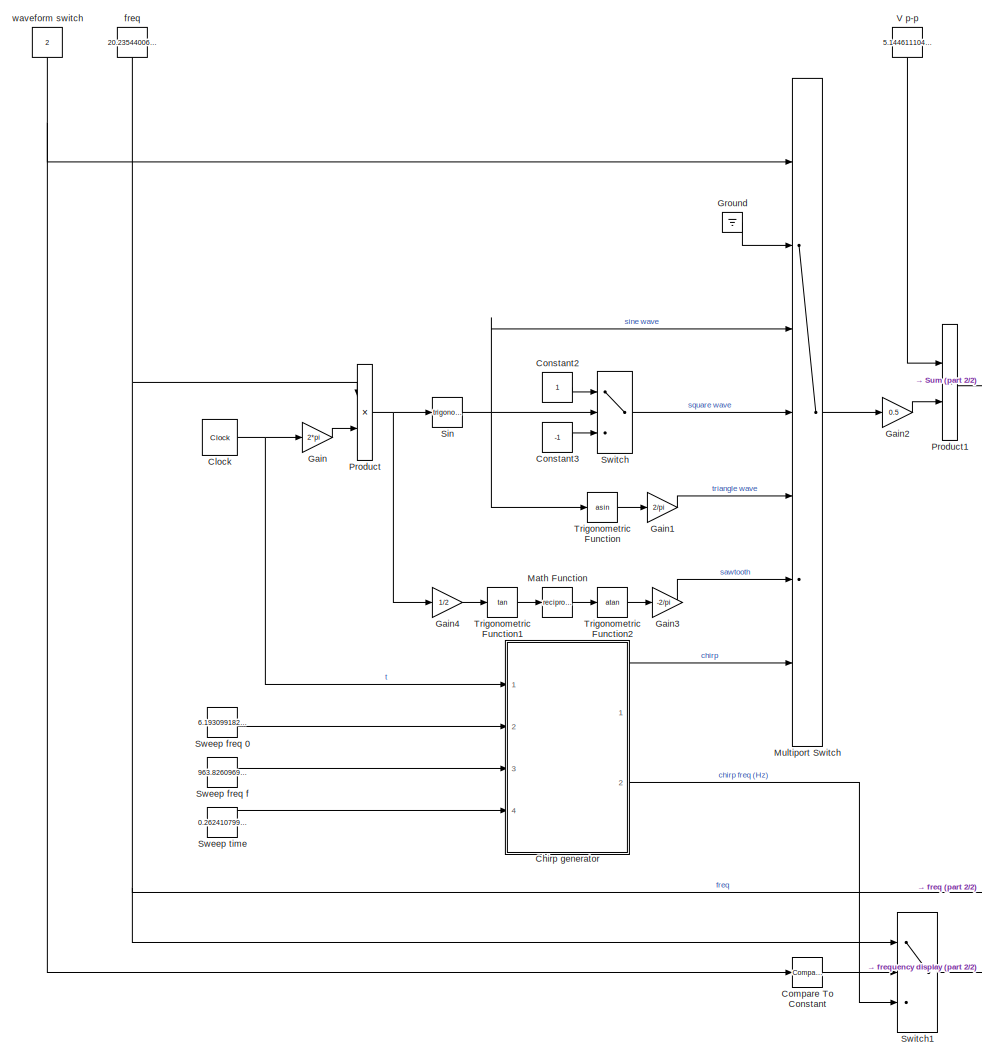
[diagram: Signal generator - part 1/2, center side, full height]
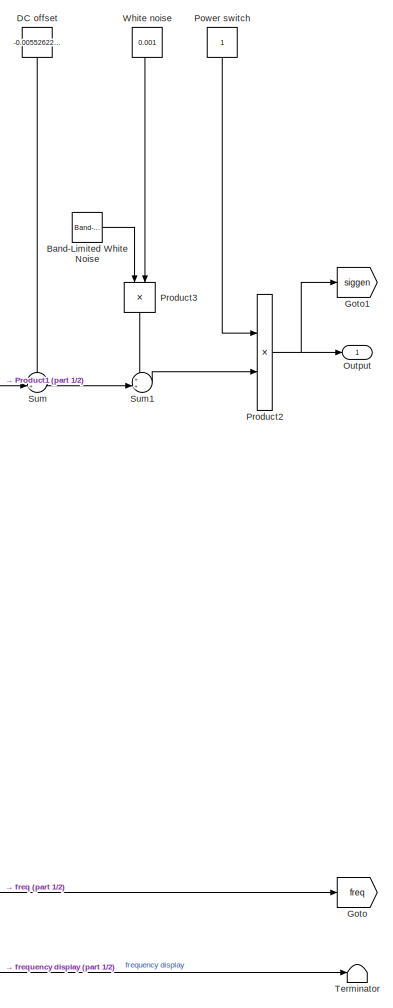
[diagram: Signal generator - part 2/2, right side, full height]
BLOCK [SubSystem] Signal generator
  NameLocation = right
  Ports = [0, 1]
  RequestExecContextInheritance = off
  ShowPortLabels = FromPortBlockName
BLOCK [Reference] Signal generator source  REF=fl_lib/Electrical/Electrical Sources/Controlled Voltage
Source
  NameLocation = left
  Ports = [0, 0, 0, 0, 0, 1, 2]
  SourceBlock = fl_lib/Electrical/Electrical Sources/Controlled Voltage\nSource
  SourceProductBaseCode = SS
  SourceType = Controlled Voltage\nSource
BLOCK [Reference] Signal generator/Band-Limited White Noise  REF=simulink/Sources/Band-Limited
White Noise
  Ports = [0, 1]
  SourceBlock = simulink/Sources/Band-Limited\nWhite Noise
  SourceProductBaseCode = SL
  SourceType = Band-Limited White Noise.
BLOCK [SubSystem] Signal generator/Chirp generator
  Ports = [4, 2]
  RequestExecContextInheritance = off
BLOCK [Abs] Signal generator/Chirp generator/Abs
  SaturateOnIntegerOverflow = off
BLOCK [Sum] Signal generator/Chirp generator/Add
  IconShape = rectangular
  Inputs = -+
  Ports = [2, 1]
BLOCK [Sum] Signal generator/Chirp generator/Add2
  IconShape = rectangular
  Ports = [2, 1]
BLOCK [Product] Signal generator/Chirp generator/Divide
  Inputs = */
  Ports = [2, 1]
BLOCK [Gain] Signal generator/Chirp generator/Gain5
  Gain = 2*pi
BLOCK [Gain] Signal generator/Chirp generator/Gain7
  Gain = 2/pi
BLOCK [Gain] Signal generator/Chirp generator/Gain8
  Gain = pi/2
BLOCK [Integrator] Signal generator/Chirp generator/Integrator
  Ports = [1, 1]
BLOCK [Math] Signal generator/Chirp generator/Math Function1
  Operator = reciprocal
  Ports = [1, 1]
BLOCK [Product] Signal generator/Chirp generator/Product1
  Ports = [2, 1]
BLOCK [Product] Signal generator/Chirp generator/Product3
  Ports = [2, 1]
BLOCK [Product] Signal generator/Chirp generator/Product5
  Ports = [2, 1]
BLOCK [Trigonometry] Signal generator/Chirp generator/Sin1
  Ports = [1, 1]
BLOCK [Trigonometry] Signal generator/Chirp generator/Sin2
  Ports = [1, 1]
BLOCK [Inport] Signal generator/Chirp generator/Sweep freq 0
  Port = 2
BLOCK [Inport] Signal generator/Chirp generator/Sweep freq f
  Port = 3
BLOCK [Inport] Signal generator/Chirp generator/Sweep time
  Port = 4
BLOCK [Trigonometry] Signal generator/Chirp generator/Trigonometric Function3
  Operator = asin
  Ports = [1, 1]
BLOCK [Outport] Signal generator/Chirp generator/chirp
BLOCK [Outport] Signal generator/Chirp generator/chirp freq
  Port = 2
BLOCK [Inport] Signal generator/Chirp generator/t
BLOCK [Clock] Signal generator/Clock
BLOCK [Reference] Signal generator/Compare To Constant  REF=simulink/Logic and Bit
Operations/Compare
To Constant
  Ports = [1, 1]
  SourceBlock = simulink/Logic and Bit\nOperations/Compare\nTo Constant
  SourceProductBaseCode = SL
  SourceType = Compare To Constant
BLOCK [Constant] Signal generator/Constant2
  SampleTime = 0
BLOCK [Constant] Signal generator/Constant3
  SampleTime = 0
  Value = -1
BLOCK [Constant] Signal generator/DC offset
  NameLocation = top
  Value = -0.005526224772135713
BLOCK [Gain] Signal generator/Gain
  Gain = 2*pi
BLOCK [Gain] Signal generator/Gain1
  Gain = 2/pi
BLOCK [Gain] Signal generator/Gain2
  Gain = 0.5
BLOCK [Gain] Signal generator/Gain3
  Gain = -2/pi
BLOCK [Gain] Signal generator/Gain4
  Gain = 1/2
BLOCK [Goto] Signal generator/Goto
  GotoTag = freq
  TagVisibility = global
BLOCK [Goto] Signal generator/Goto1
  GotoTag = siggen
  TagVisibility = global
BLOCK [Ground] Signal generator/Ground
BLOCK [Math] Signal generator/Math Function
  Operator = reciprocal
  Ports = [1, 1]
BLOCK [MultiPortSwitch] Signal generator/Multiport Switch
  DataPortOrder = Zero-based contiguous
  DiagnosticForDefault = None
  InputSameDT = off
  Inputs = 6
  Ports = [7, 1]
  SaturateOnIntegerOverflow = off
  zeroidx = on
BLOCK [Outport] Signal generator/Output
BLOCK [Constant] Signal generator/Power switch
  NameLocation = top
BLOCK [Product] Signal generator/Product
  Ports = [2, 1]
BLOCK [Product] Signal generator/Product1
  Ports = [2, 1]
BLOCK [Product] Signal generator/Product2
  Ports = [2, 1]
BLOCK [Product] Signal generator/Product3
  NameLocation = left
  Ports = [2, 1]
BLOCK [Trigonometry] Signal generator/Sin
  Ports = [1, 1]
BLOCK [Sum] Signal generator/Sum
  Inputs = ++|
  Ports = [2, 1]
BLOCK [Sum] Signal generator/Sum1
  Inputs = ++|
  Ports = [2, 1]
BLOCK [Constant] Signal generator/Sweep freq 0
  Value = 6.193099182296982
BLOCK [Constant] Signal generator/Sweep freq f
  Value = 963.8260969827539
BLOCK [Constant] Signal generator/Sweep time
  Value = 0.2624107996622722
BLOCK [Switch] Signal generator/Switch
  Criteria = u2 > Threshold
  InputSameDT = off
  SaturateOnIntegerOverflow = off
BLOCK [Switch] Signal generator/Switch1
  Criteria = u2 > Threshold
  InputSameDT = off
  SaturateOnIntegerOverflow = off
BLOCK [Terminator] Signal generator/Terminator
BLOCK [Trigonometry] Signal generator/Trigonometric Function
  Operator = asin
  Ports = [1, 1]
BLOCK [Trigonometry] Signal generator/Trigonometric Function1
  Operator = tan
  Ports = [1, 1]
BLOCK [Trigonometry] Signal generator/Trigonometric Function2
  Operator = atan
  Ports = [1, 1]
BLOCK [Constant] Signal generator/V p-p
  NameLocation = top
  SampleTime = -1
  Value = 5.144611104329427
BLOCK [Constant] Signal generator/White noise
  NameLocation = top
  Value = 0.001
BLOCK [Constant] Signal generator/freq
  NameLocation = top
  SampleTime = 0
  Value = 20.23544006347656
BLOCK [Constant] Signal generator/waveform switch
  NameLocation = top
  SampleTime = 0
  Value = 2
BLOCK [Reference] Simulink-PS Converter  REF=nesl_utility/Simulink-PS
Converter
  Ports = [1, 0, 0, 0, 0, 0, 1]
  SourceBlock = nesl_utility/Simulink-PS\nConverter
  SourceProductBaseCode = PW,SS
  SourceType = Simulink-PS\nConverter
BLOCK [SliderBlock] Slider1
  LabelPosition = Hide
  NameLocation = left
  ScaleMax = 40
  TickInterval = 20
BLOCK [SliderBlock] Slider2
  LabelPosition = Hide
  NameLocation = left
  ScaleMax = 20
  TickInterval = 10
BLOCK [SliderBlock] Slider3
  LabelPosition = Hide
  NameLocation = left
  ScaleMax = 0
  ScaleMin = -20
  TickInterval = 10
BLOCK [SliderBlock] Slider4
  LabelPosition = Hide
  NameLocation = left
  ScaleMax = 0
  ScaleMin = -40
  TickInterval = 20
BLOCK [Reference] Solver Configuration  REF=nesl_utility/Solver
Configuration
  Ports = [0, 0, 0, 0, 0, 0, 1]
  SourceBlock = nesl_utility/Solver\nConfiguration
  SourceProductBaseCode = PW,SS
  SourceType = Solver\nConfiguration
ANNOTATION (root): 1. Build your circuit here
ANNOTATION (root): 2. Connect the leads
ANNOTATION (root): Channel 1
ANNOTATION (root): Cursor freq.
ANNOTATION (root): Cursor time
ANNOTATION (root): Source
ANNOTATION (root): Window
ANNOTATION (root): Frequency
ANNOTATION (root): V p-p
ANNOTATION (root): Display mode
ANNOTATION (root): Fixed window width (ms)
ANNOTATION (root): Trigger cycles
ANNOTATION (root): Chirp duration (s)
ANNOTATION (root): Chirp final freq. (Hz)
ANNOTATION (root): Chirp init. freq. (Hz)
ANNOTATION (root): Frequency (Hz)
ANNOTATION (root): V p-p (V)
ANNOTATION (root): Y-limits
ANNOTATION (root): Cursor
ANNOTATION (root): White noise multiplier
ANNOTATION (root): DC offset (V)
ANNOTATION (root): Cursor position (% of window)
ANNOTATION (root): Waveform
ANNOTATION (root): Oscilloscope
ANNOTATION (root): Signal Analyzer
ANNOTATION (root): Signal Generator
ANNOTATION Oscilloscope and Signal Analyzer: Simscape Electrical measurement
ANNOTATION Oscilloscope and Signal Analyzer/Oscilloscope logic/Channel 0 compute: This level stores the plot values inside the delay block
ANNOTATION Oscilloscope and Signal Analyzer/Oscilloscope logic/Channel 0 compute/Triggered Subsystem: This subsystem triggers substituting a new point in the waveform.
ANNOTATION Oscilloscope and Signal Analyzer/Oscilloscope logic/Channel 1 compute: This level stores the plot values inside the delay block
ANNOTATION Oscilloscope and Signal Analyzer/Oscilloscope logic/Channel 1 compute/Triggered Subsystem: This subsystem triggers substituting a new point in the waveform.
ANNOTATION Oscilloscope and Signal Analyzer/Oscilloscope logic/Trigger signals: Calculate window width
ANNOTATION Oscilloscope and Signal Analyzer/Oscilloscope logic/Trigger signals: Fixed window sampling
ANNOTATION Oscilloscope and Signal Analyzer/Oscilloscope logic/Trigger signals: Triggering logic
LINE Oscilloscope and Signal Analyzer/Cursor position SA:1 -> Oscilloscope and Signal Analyzer/Signal Analyzer logic:5
LINE Oscilloscope and Signal Analyzer/Cursor position:1 -> Oscilloscope and Signal Analyzer/Oscilloscope logic:8
LINE Oscilloscope and Signal Analyzer/Cycles:1 -> Oscilloscope and Signal Analyzer/Oscilloscope logic:6
LINE Oscilloscope and Signal Analyzer/Fixed window (ms):1 -> Oscilloscope and Signal Analyzer/Oscilloscope logic:5
LINE Oscilloscope and Signal Analyzer/From1:1 -> Oscilloscope and Signal Analyzer/Oscilloscope logic:2
LINE Oscilloscope and Signal Analyzer/From:1 -> Oscilloscope and Signal Analyzer/Oscilloscope logic:1
LINE Oscilloscope and Signal Analyzer/O Power switch:1 -> Oscilloscope and Signal Analyzer/Oscilloscope logic:7
LINE Oscilloscope and Signal Analyzer/Oscilloscope logic/Channel 0 compute/Rate Transition2:1 -> Oscilloscope and Signal Analyzer/Oscilloscope logic/Channel 0 compute/plot vector (k):1
LINE Oscilloscope and Signal Analyzer/Oscilloscope logic/Channel 0 compute/Triggered Subsystem/Assignment:1 -> Oscilloscope and Signal Analyzer/Oscilloscope logic/Channel 0 compute/Triggered Subsystem/plot vector (k):1
LINE Oscilloscope and Signal Analyzer/Oscilloscope logic/Channel 0 compute/Triggered Subsystem/Counter/Bias1:1 -> Oscilloscope and Signal Analyzer/Oscilloscope logic/Channel 0 compute/Triggered Subsystem/Counter/Out1:1
LINE Oscilloscope and Signal Analyzer/Oscilloscope logic/Channel 0 compute/Triggered Subsystem/Counter/Bias:1 -> Oscilloscope and Signal Analyzer/Oscilloscope logic/Channel 0 compute/Triggered Subsystem/Counter/Unit Delay:1
LINE Oscilloscope and Signal Analyzer/Oscilloscope logic/Channel 0 compute/Triggered Subsystem/Counter/Constant1:1 -> Oscilloscope and Signal Analyzer/Oscilloscope logic/Channel 0 compute/Triggered Subsystem/Counter/Math Function:2
LINE Oscilloscope and Signal Analyzer/Oscilloscope logic/Channel 0 compute/Triggered Subsystem/Counter/Data Type Conversion:1 -> Oscilloscope and Signal Analyzer/Oscilloscope logic/Channel 0 compute/Triggered Subsystem/Counter/Bias1:1
LINE Oscilloscope and Signal Analyzer/Oscilloscope logic/Channel 0 compute/Triggered Subsystem/Counter/Math Function:1 -> Oscilloscope and Signal Analyzer/Oscilloscope logic/Channel 0 compute/Triggered Subsystem/Counter/Data Type Conversion:1
NET Oscilloscope and Signal Analyzer/Oscilloscope logic/Channel 0 compute/Triggered Subsystem/Counter/Unit Delay:1 -> Oscilloscope and Signal Analyzer/Oscilloscope logic/Channel 0 compute/Triggered Subsystem/Counter/Bias:1, Oscilloscope and Signal Analyzer/Oscilloscope logic/Channel 0 compute/Triggered Subsystem/Counter/Math Function:1
LINE Oscilloscope and Signal Analyzer/Oscilloscope logic/Channel 0 compute/Triggered Subsystem/Counter:1 -> Oscilloscope and Signal Analyzer/Oscilloscope logic/Channel 0 compute/Triggered Subsystem/Assignment:3
LINE Oscilloscope and Signal Analyzer/Oscilloscope logic/Channel 0 compute/Triggered Subsystem/input value:1 -> Oscilloscope and Signal Analyzer/Oscilloscope logic/Channel 0 compute/Triggered Subsystem/Assignment:2
LINE Oscilloscope and Signal Analyzer/Oscilloscope logic/Channel 0 compute/Triggered Subsystem/plot vector (k-1):1 -> Oscilloscope and Signal Analyzer/Oscilloscope logic/Channel 0 compute/Triggered Subsystem/Assignment:1
NET Oscilloscope and Signal Analyzer/Oscilloscope logic/Channel 0 compute/Triggered Subsystem:1 -> Oscilloscope and Signal Analyzer/Oscilloscope logic/Channel 0 compute/Rate Transition2:1, Oscilloscope and Signal Analyzer/Oscilloscope logic/Channel 0 compute/plot vector values:1
LINE Oscilloscope and Signal Analyzer/Oscilloscope logic/Channel 0 compute/input value:1 -> Oscilloscope and Signal Analyzer/Oscilloscope logic/Channel 0 compute/Triggered Subsystem:1
LINE Oscilloscope and Signal Analyzer/Oscilloscope logic/Channel 0 compute/plot point trigger:1 -> Oscilloscope and Signal Analyzer/Oscilloscope logic/Channel 0 compute/Triggered Subsystem:trigger
LINE Oscilloscope and Signal Analyzer/Oscilloscope logic/Channel 0 compute/plot vector values:1 -> Oscilloscope and Signal Analyzer/Oscilloscope logic/Channel 0 compute/Triggered Subsystem:2
NET Oscilloscope and Signal Analyzer/Oscilloscope logic/Channel 0 compute:1 -> Oscilloscope and Signal Analyzer/Oscilloscope logic/Cursor calculations:1, Oscilloscope and Signal Analyzer/Oscilloscope logic/Product2:2, Oscilloscope and Signal Analyzer/Oscilloscope logic/SG:1
LINE Oscilloscope and Signal Analyzer/Oscilloscope logic/Channel 1 compute/Rate Transition2:1 -> Oscilloscope and Signal Analyzer/Oscilloscope logic/Channel 1 compute/plot vector (k):1
LINE Oscilloscope and Signal Analyzer/Oscilloscope logic/Channel 1 compute/Triggered Subsystem/Assignment:1 -> Oscilloscope and Signal Analyzer/Oscilloscope logic/Channel 1 compute/Triggered Subsystem/plot vector (k):1
LINE Oscilloscope and Signal Analyzer/Oscilloscope logic/Channel 1 compute/Triggered Subsystem/Counter/Bias1:1 -> Oscilloscope and Signal Analyzer/Oscilloscope logic/Channel 1 compute/Triggered Subsystem/Counter/Out1:1
LINE Oscilloscope and Signal Analyzer/Oscilloscope logic/Channel 1 compute/Triggered Subsystem/Counter/Bias:1 -> Oscilloscope and Signal Analyzer/Oscilloscope logic/Channel 1 compute/Triggered Subsystem/Counter/Unit Delay:1
LINE Oscilloscope and Signal Analyzer/Oscilloscope logic/Channel 1 compute/Triggered Subsystem/Counter/Constant1:1 -> Oscilloscope and Signal Analyzer/Oscilloscope logic/Channel 1 compute/Triggered Subsystem/Counter/Math Function:2
LINE Oscilloscope and Signal Analyzer/Oscilloscope logic/Channel 1 compute/Triggered Subsystem/Counter/Data Type Conversion:1 -> Oscilloscope and Signal Analyzer/Oscilloscope logic/Channel 1 compute/Triggered Subsystem/Counter/Bias1:1
LINE Oscilloscope and Signal Analyzer/Oscilloscope logic/Channel 1 compute/Triggered Subsystem/Counter/Math Function:1 -> Oscilloscope and Signal Analyzer/Oscilloscope logic/Channel 1 compute/Triggered Subsystem/Counter/Data Type Conversion:1
NET Oscilloscope and Signal Analyzer/Oscilloscope logic/Channel 1 compute/Triggered Subsystem/Counter/Unit Delay:1 -> Oscilloscope and Signal Analyzer/Oscilloscope logic/Channel 1 compute/Triggered Subsystem/Counter/Bias:1, Oscilloscope and Signal Analyzer/Oscilloscope logic/Channel 1 compute/Triggered Subsystem/Counter/Math Function:1
LINE Oscilloscope and Signal Analyzer/Oscilloscope logic/Channel 1 compute/Triggered Subsystem/Counter:1 -> Oscilloscope and Signal Analyzer/Oscilloscope logic/Channel 1 compute/Triggered Subsystem/Assignment:3
LINE Oscilloscope and Signal Analyzer/Oscilloscope logic/Channel 1 compute/Triggered Subsystem/input value:1 -> Oscilloscope and Signal Analyzer/Oscilloscope logic/Channel 1 compute/Triggered Subsystem/Assignment:2
LINE Oscilloscope and Signal Analyzer/Oscilloscope logic/Channel 1 compute/Triggered Subsystem/plot vector (k-1):1 -> Oscilloscope and Signal Analyzer/Oscilloscope logic/Channel 1 compute/Triggered Subsystem/Assignment:1
NET Oscilloscope and Signal Analyzer/Oscilloscope logic/Channel 1 compute/Triggered Subsystem:1 -> Oscilloscope and Signal Analyzer/Oscilloscope logic/Channel 1 compute/Rate Transition2:1, Oscilloscope and Signal Analyzer/Oscilloscope logic/Channel 1 compute/plot vector values:1
LINE Oscilloscope and Signal Analyzer/Oscilloscope logic/Channel 1 compute/input value:1 -> Oscilloscope and Signal Analyzer/Oscilloscope logic/Channel 1 compute/Triggered Subsystem:1
LINE Oscilloscope and Signal Analyzer/Oscilloscope logic/Channel 1 compute/plot point trigger:1 -> Oscilloscope and Signal Analyzer/Oscilloscope logic/Channel 1 compute/Triggered Subsystem:trigger
LINE Oscilloscope and Signal Analyzer/Oscilloscope logic/Channel 1 compute/plot vector values:1 -> Oscilloscope and Signal Analyzer/Oscilloscope logic/Channel 1 compute/Triggered Subsystem:2
NET Oscilloscope and Signal Analyzer/Oscilloscope logic/Channel 1 compute:1 -> Oscilloscope and Signal Analyzer/Oscilloscope logic/Ch 1:1, Oscilloscope and Signal Analyzer/Oscilloscope logic/Cursor calculations:2, Oscilloscope and Signal Analyzer/Oscilloscope logic/Product1:2
LINE Oscilloscope and Signal Analyzer/Oscilloscope logic/Cursor calculations/Channel 1:1 -> Oscilloscope and Signal Analyzer/Oscilloscope logic/Cursor calculations/Subsystem1:2
LINE Oscilloscope and Signal Analyzer/Oscilloscope logic/Cursor calculations/Constant1:1 -> Oscilloscope and Signal Analyzer/Oscilloscope logic/Cursor calculations/Sum:1
LINE Oscilloscope and Signal Analyzer/Oscilloscope logic/Cursor calculations/Constant:1 -> Oscilloscope and Signal Analyzer/Oscilloscope logic/Cursor calculations/GreaterThan:1
LINE Oscilloscope and Signal Analyzer/Oscilloscope logic/Cursor calculations/Gain1:1 -> Oscilloscope and Signal Analyzer/Oscilloscope logic/Cursor calculations/cursor time (ms):1
LINE Oscilloscope and Signal Analyzer/Oscilloscope logic/Cursor calculations/Gain2:1 -> Oscilloscope and Signal Analyzer/Oscilloscope logic/Cursor calculations/Sum:2
LINE Oscilloscope and Signal Analyzer/Oscilloscope logic/Cursor calculations/Gain4:1 -> Oscilloscope and Signal Analyzer/Oscilloscope logic/Cursor calculations/Product3:2
LINE Oscilloscope and Signal Analyzer/Oscilloscope logic/Cursor calculations/Gain5:1 -> Oscilloscope and Signal Analyzer/Oscilloscope logic/Cursor calculations/window width (ms):1
LINE Oscilloscope and Signal Analyzer/Oscilloscope logic/Cursor calculations/Gain:1 -> Oscilloscope and Signal Analyzer/Oscilloscope logic/Cursor calculations/Round1:1
LINE Oscilloscope and Signal Analyzer/Oscilloscope logic/Cursor calculations/GreaterThan:1 -> Oscilloscope and Signal Analyzer/Oscilloscope logic/Cursor calculations/Gain2:1
LINE Oscilloscope and Signal Analyzer/Oscilloscope logic/Cursor calculations/Product3:1 -> Oscilloscope and Signal Analyzer/Oscilloscope logic/Cursor calculations/Gain1:1
NET Oscilloscope and Signal Analyzer/Oscilloscope logic/Cursor calculations/Round1:1 -> Oscilloscope and Signal Analyzer/Oscilloscope logic/Cursor calculations/Gain4:1, Oscilloscope and Signal Analyzer/Oscilloscope logic/Cursor calculations/one-based indexing:1
LINE Oscilloscope and Signal Analyzer/Oscilloscope logic/Cursor calculations/Signal Generator:1 -> Oscilloscope and Signal Analyzer/Oscilloscope logic/Cursor calculations/Subsystem:2
LINE Oscilloscope and Signal Analyzer/Oscilloscope logic/Cursor calculations/Subsystem/Assignment1:1 -> Oscilloscope and Signal Analyzer/Oscilloscope logic/Cursor calculations/Subsystem/Cursor vector :1
LINE Oscilloscope and Signal Analyzer/Oscilloscope logic/Cursor calculations/Subsystem/Constant2:1 -> Oscilloscope and Signal Analyzer/Oscilloscope logic/Cursor calculations/Subsystem/Assignment1:1
NET Oscilloscope and Signal Analyzer/Oscilloscope logic/Cursor calculations/Subsystem/Cursor index:1 -> Oscilloscope and Signal Analyzer/Oscilloscope logic/Cursor calculations/Subsystem/Assignment1:3, Oscilloscope and Signal Analyzer/Oscilloscope logic/Cursor calculations/Subsystem/Selector:2
NET Oscilloscope and Signal Analyzer/Oscilloscope logic/Cursor calculations/Subsystem/Selector:1 -> Oscilloscope and Signal Analyzer/Oscilloscope logic/Cursor calculations/Subsystem/Assignment1:2, Oscilloscope and Signal Analyzer/Oscilloscope logic/Cursor calculations/Subsystem/Cursor value:1
LINE Oscilloscope and Signal Analyzer/Oscilloscope logic/Cursor calculations/Subsystem/Vector:1 -> Oscilloscope and Signal Analyzer/Oscilloscope logic/Cursor calculations/Subsystem/Selector:1
LINE Oscilloscope and Signal Analyzer/Oscilloscope logic/Cursor calculations/Subsystem1/Assignment1:1 -> Oscilloscope and Signal Analyzer/Oscilloscope logic/Cursor calculations/Subsystem1/Cursor vector :1
LINE Oscilloscope and Signal Analyzer/Oscilloscope logic/Cursor calculations/Subsystem1/Constant2:1 -> Oscilloscope and Signal Analyzer/Oscilloscope logic/Cursor calculations/Subsystem1/Assignment1:1
NET Oscilloscope and Signal Analyzer/Oscilloscope logic/Cursor calculations/Subsystem1/Cursor index:1 -> Oscilloscope and Signal Analyzer/Oscilloscope logic/Cursor calculations/Subsystem1/Assignment1:3, Oscilloscope and Signal Analyzer/Oscilloscope logic/Cursor calculations/Subsystem1/Selector:2
NET Oscilloscope and Signal Analyzer/Oscilloscope logic/Cursor calculations/Subsystem1/Selector:1 -> Oscilloscope and Signal Analyzer/Oscilloscope logic/Cursor calculations/Subsystem1/Assignment1:2, Oscilloscope and Signal Analyzer/Oscilloscope logic/Cursor calculations/Subsystem1/Cursor value:1
LINE Oscilloscope and Signal Analyzer/Oscilloscope logic/Cursor calculations/Subsystem1/Vector:1 -> Oscilloscope and Signal Analyzer/Oscilloscope logic/Cursor calculations/Subsystem1/Selector:1
LINE Oscilloscope and Signal Analyzer/Oscilloscope logic/Cursor calculations/Subsystem1:1 -> Oscilloscope and Signal Analyzer/Oscilloscope logic/Cursor calculations/Cursor vector channel 1:1
LINE Oscilloscope and Signal Analyzer/Oscilloscope logic/Cursor calculations/Subsystem1:2 -> Oscilloscope and Signal Analyzer/Oscilloscope logic/Cursor calculations/channel 1 value:1
LINE Oscilloscope and Signal Analyzer/Oscilloscope logic/Cursor calculations/Subsystem:1 -> Oscilloscope and Signal Analyzer/Oscilloscope logic/Cursor calculations/Cursor vector sg:1
LINE Oscilloscope and Signal Analyzer/Oscilloscope logic/Cursor calculations/Subsystem:2 -> Oscilloscope and Signal Analyzer/Oscilloscope logic/Cursor calculations/sg value:1
LINE Oscilloscope and Signal Analyzer/Oscilloscope logic/Cursor calculations/Sum:1 -> Oscilloscope and Signal Analyzer/Oscilloscope logic/Cursor calculations/Cursor vector 1:1
LINE Oscilloscope and Signal Analyzer/Oscilloscope logic/Cursor calculations/cursor position:1 -> Oscilloscope and Signal Analyzer/Oscilloscope logic/Cursor calculations/Gain:1
NET Oscilloscope and Signal Analyzer/Oscilloscope logic/Cursor calculations/one-based indexing:1 -> Oscilloscope and Signal Analyzer/Oscilloscope logic/Cursor calculations/GreaterThan:2, Oscilloscope and Signal Analyzer/Oscilloscope logic/Cursor calculations/Subsystem1:1, Oscilloscope and Signal Analyzer/Oscilloscope logic/Cursor calculations/Subsystem:1
NET Oscilloscope and Signal Analyzer/Oscilloscope logic/Cursor calculations/window width (s):1 -> Oscilloscope and Signal Analyzer/Oscilloscope logic/Cursor calculations/Gain5:1, Oscilloscope and Signal Analyzer/Oscilloscope logic/Cursor calculations/Product3:1
LINE Oscilloscope and Signal Analyzer/Oscilloscope logic/Cursor calculations:1 -> Oscilloscope and Signal Analyzer/Oscilloscope logic/Matrix Concatenate2:3
LINE Oscilloscope and Signal Analyzer/Oscilloscope logic/Cursor calculations:2 -> Oscilloscope and Signal Analyzer/Oscilloscope logic/Terminator:1
LINE Oscilloscope and Signal Analyzer/Oscilloscope logic/Cursor calculations:3 -> Oscilloscope and Signal Analyzer/Oscilloscope logic/Terminator1:1
LINE Oscilloscope and Signal Analyzer/Oscilloscope logic/Cursor calculations:4 -> Oscilloscope and Signal Analyzer/Oscilloscope logic/Terminator2:1
LINE Oscilloscope and Signal Analyzer/Oscilloscope logic/Cursor calculations:5 -> Oscilloscope and Signal Analyzer/Oscilloscope logic/Terminator3:1
LINE Oscilloscope and Signal Analyzer/Oscilloscope logic/Cursor calculations:6 -> Oscilloscope and Signal Analyzer/Oscilloscope logic/Terminator5:1
LINE Oscilloscope and Signal Analyzer/Oscilloscope logic/Cursor calculations:7 -> Oscilloscope and Signal Analyzer/Oscilloscope logic/Terminator4:1
LINE Oscilloscope and Signal Analyzer/Oscilloscope logic/Cursor position:1 -> Oscilloscope and Signal Analyzer/Oscilloscope logic/Cursor calculations:4
LINE Oscilloscope and Signal Analyzer/Oscilloscope logic/Cycles:1 -> Oscilloscope and Signal Analyzer/Oscilloscope logic/Trigger signals:4
LINE Oscilloscope and Signal Analyzer/Oscilloscope logic/Matrix Concatenate2:1 -> Oscilloscope and Signal Analyzer/Oscilloscope logic/Outport1:1
NET Oscilloscope and Signal Analyzer/Oscilloscope logic/Power switch:1 -> Oscilloscope and Signal Analyzer/Oscilloscope logic/Product1:1, Oscilloscope and Signal Analyzer/Oscilloscope logic/Product2:1
LINE Oscilloscope and Signal Analyzer/Oscilloscope logic/Product1:1 -> Oscilloscope and Signal Analyzer/Oscilloscope logic/Matrix Concatenate2:1
LINE Oscilloscope and Signal Analyzer/Oscilloscope logic/Product2:1 -> Oscilloscope and Signal Analyzer/Oscilloscope logic/Matrix Concatenate2:2
LINE Oscilloscope and Signal Analyzer/Oscilloscope logic/Trigger signals/Clock2:1 -> Oscilloscope and Signal Analyzer/Oscilloscope logic/Trigger signals/Gain5:1
LINE Oscilloscope and Signal Analyzer/Oscilloscope logic/Trigger signals/Clock:1 -> Oscilloscope and Signal Analyzer/Oscilloscope logic/Trigger signals/Gain1:1
LINE Oscilloscope and Signal Analyzer/Oscilloscope logic/Trigger signals/Constant1:1 -> Oscilloscope and Signal Analyzer/Oscilloscope logic/Trigger signals/Switch1:1
LINE Oscilloscope and Signal Analyzer/Oscilloscope logic/Trigger signals/Constant2:1 -> Oscilloscope and Signal Analyzer/Oscilloscope logic/Trigger signals/Switch3:1
LINE Oscilloscope and Signal Analyzer/Oscilloscope logic/Trigger signals/Constant3:1 -> Oscilloscope and Signal Analyzer/Oscilloscope logic/Trigger signals/Switch3:3
LINE Oscilloscope and Signal Analyzer/Oscilloscope logic/Trigger signals/Constant4:1 -> Oscilloscope and Signal Analyzer/Oscilloscope logic/Trigger signals/Switch1:3
NET Oscilloscope and Signal Analyzer/Oscilloscope logic/Trigger signals/Cycles:1 -> Oscilloscope and Signal Analyzer/Oscilloscope logic/Trigger signals/Divide:2, Oscilloscope and Signal Analyzer/Oscilloscope logic/Trigger signals/Product2:2
LINE Oscilloscope and Signal Analyzer/Oscilloscope logic/Trigger signals/Divide:1 -> Oscilloscope and Signal Analyzer/Oscilloscope logic/Trigger signals/N points:1
LINE Oscilloscope and Signal Analyzer/Oscilloscope logic/Trigger signals/Gain1:1 -> Oscilloscope and Signal Analyzer/Oscilloscope logic/Trigger signals/Product3:1
LINE Oscilloscope and Signal Analyzer/Oscilloscope logic/Trigger signals/Gain5:1 -> Oscilloscope and Signal Analyzer/Oscilloscope logic/Trigger signals/Product1:1
NET Oscilloscope and Signal Analyzer/Oscilloscope logic/Trigger signals/Gain:1 -> Oscilloscope and Signal Analyzer/Oscilloscope logic/Trigger signals/Math Function1:1, Oscilloscope and Signal Analyzer/Oscilloscope logic/Trigger signals/Switch:3
LINE Oscilloscope and Signal Analyzer/Oscilloscope logic/Trigger signals/Math Function1:1 -> Oscilloscope and Signal Analyzer/Oscilloscope logic/Trigger signals/Product3:2
LINE Oscilloscope and Signal Analyzer/Oscilloscope logic/Trigger signals/Math Function:1 -> Oscilloscope and Signal Analyzer/Oscilloscope logic/Trigger signals/Product2:1
LINE Oscilloscope and Signal Analyzer/Oscilloscope logic/Trigger signals/N points1:1 -> Oscilloscope and Signal Analyzer/Oscilloscope logic/Trigger signals/Rate Transition1:1
LINE Oscilloscope and Signal Analyzer/Oscilloscope logic/Trigger signals/N points:1 -> Oscilloscope and Signal Analyzer/Oscilloscope logic/Trigger signals/Rate Transition:1
LINE Oscilloscope and Signal Analyzer/Oscilloscope logic/Trigger signals/Product1:1 -> Oscilloscope and Signal Analyzer/Oscilloscope logic/Trigger signals/Divide:1
LINE Oscilloscope and Signal Analyzer/Oscilloscope logic/Trigger signals/Product2:1 -> Oscilloscope and Signal Analyzer/Oscilloscope logic/Trigger signals/Switch:1
LINE Oscilloscope and Signal Analyzer/Oscilloscope logic/Trigger signals/Product3:1 -> Oscilloscope and Signal Analyzer/Oscilloscope logic/Trigger signals/N points1:1
LINE Oscilloscope and Signal Analyzer/Oscilloscope logic/Trigger signals/Rate Transition1:1 -> Oscilloscope and Signal Analyzer/Oscilloscope logic/Trigger signals/Sin2:1
LINE Oscilloscope and Signal Analyzer/Oscilloscope logic/Trigger signals/Rate Transition:1 -> Oscilloscope and Signal Analyzer/Oscilloscope logic/Trigger signals/Sin1:1
LINE Oscilloscope and Signal Analyzer/Oscilloscope logic/Trigger signals/Sin1:1 -> Oscilloscope and Signal Analyzer/Oscilloscope logic/Trigger signals/Switch1:2
LINE Oscilloscope and Signal Analyzer/Oscilloscope logic/Trigger signals/Sin2:1 -> Oscilloscope and Signal Analyzer/Oscilloscope logic/Trigger signals/Switch3:2
LINE Oscilloscope and Signal Analyzer/Oscilloscope logic/Trigger signals/Switch1:1 -> Oscilloscope and Signal Analyzer/Oscilloscope logic/Trigger signals/Switch2:1
LINE Oscilloscope and Signal Analyzer/Oscilloscope logic/Trigger signals/Switch2:1 -> Oscilloscope and Signal Analyzer/Oscilloscope logic/Trigger signals/plot point trigger:1
LINE Oscilloscope and Signal Analyzer/Oscilloscope logic/Trigger signals/Switch3:1 -> Oscilloscope and Signal Analyzer/Oscilloscope logic/Trigger signals/Switch2:3
LINE Oscilloscope and Signal Analyzer/Oscilloscope logic/Trigger signals/Switch:1 -> Oscilloscope and Signal Analyzer/Oscilloscope logic/Trigger signals/window width (s):1
NET Oscilloscope and Signal Analyzer/Oscilloscope logic/Trigger signals/Triggered switch:1 -> Oscilloscope and Signal Analyzer/Oscilloscope logic/Trigger signals/Switch2:2, Oscilloscope and Signal Analyzer/Oscilloscope logic/Trigger signals/Switch:2
LINE Oscilloscope and Signal Analyzer/Oscilloscope logic/Trigger signals/fixed window (ms):1 -> Oscilloscope and Signal Analyzer/Oscilloscope logic/Trigger signals/Gain:1
NET Oscilloscope and Signal Analyzer/Oscilloscope logic/Trigger signals/freq:1 -> Oscilloscope and Signal Analyzer/Oscilloscope logic/Trigger signals/Math Function:1, Oscilloscope and Signal Analyzer/Oscilloscope logic/Trigger signals/Product1:2
NET Oscilloscope and Signal Analyzer/Oscilloscope logic/Trigger signals:1 -> Oscilloscope and Signal Analyzer/Oscilloscope logic/Cursor calculations:3, Oscilloscope and Signal Analyzer/Oscilloscope logic/window width (s):1
NET Oscilloscope and Signal Analyzer/Oscilloscope logic/Trigger signals:2 -> Oscilloscope and Signal Analyzer/Oscilloscope logic/Channel 0 compute:2, Oscilloscope and Signal Analyzer/Oscilloscope logic/Channel 1 compute:2
LINE Oscilloscope and Signal Analyzer/Oscilloscope logic/Triggered switch:1 -> Oscilloscope and Signal Analyzer/Oscilloscope logic/Trigger signals:2
LINE Oscilloscope and Signal Analyzer/Oscilloscope logic/ch1 measurement:1 -> Oscilloscope and Signal Analyzer/Oscilloscope logic/Channel 1 compute:1
LINE Oscilloscope and Signal Analyzer/Oscilloscope logic/fixed window (ms):1 -> Oscilloscope and Signal Analyzer/Oscilloscope logic/Trigger signals:3
LINE Oscilloscope and Signal Analyzer/Oscilloscope logic/freq:1 -> Oscilloscope and Signal Analyzer/Oscilloscope logic/Trigger signals:1
LINE Oscilloscope and Signal Analyzer/Oscilloscope logic/input value:1 -> Oscilloscope and Signal Analyzer/Oscilloscope logic/Channel 0 compute:1
LINE Oscilloscope and Signal Analyzer/Oscilloscope logic:1 -> Oscilloscope and Signal Analyzer/Signal Analyzer logic:1
LINE Oscilloscope and Signal Analyzer/Oscilloscope logic:2 -> Oscilloscope and Signal Analyzer/Signal Analyzer logic:2
LINE Oscilloscope and Signal Analyzer/Oscilloscope logic:3 -> Oscilloscope and Signal Analyzer/Signal Analyzer logic:3
LINE Oscilloscope and Signal Analyzer/Oscilloscope logic:4 -> Oscilloscope and Signal Analyzer/DSO:1
LINE Oscilloscope and Signal Analyzer/PS power switch:1 -> Oscilloscope and Signal Analyzer/Signal Analyzer logic:6
LINE Oscilloscope and Signal Analyzer/PS-Simulink Converter:1 -> Oscilloscope and Signal Analyzer/Oscilloscope logic:3
LINE Oscilloscope and Signal Analyzer/SA Mode:1 -> Oscilloscope and Signal Analyzer/Signal Analyzer logic:4
LINE Oscilloscope and Signal Analyzer/Signal Analyzer logic/Ch 1:1 -> Oscilloscope and Signal Analyzer/Signal Analyzer logic/Matrix Concatenate:1
LINE Oscilloscope and Signal Analyzer/Signal Analyzer logic/Constant2:1 -> Oscilloscope and Signal Analyzer/Signal Analyzer logic/Product3:2
LINE Oscilloscope and Signal Analyzer/Signal Analyzer logic/Constant4:1 -> Oscilloscope and Signal Analyzer/Signal Analyzer logic/One-sided spectrum:2
LINE Oscilloscope and Signal Analyzer/Signal Analyzer logic/Cursor calculations1/Channel 1:1 -> Oscilloscope and Signal Analyzer/Signal Analyzer logic/Cursor calculations1/Subsystem1:2
LINE Oscilloscope and Signal Analyzer/Signal Analyzer logic/Cursor calculations1/Constant1:1 -> Oscilloscope and Signal Analyzer/Signal Analyzer logic/Cursor calculations1/Sum:1
LINE Oscilloscope and Signal Analyzer/Signal Analyzer logic/Cursor calculations1/Constant:1 -> Oscilloscope and Signal Analyzer/Signal Analyzer logic/Cursor calculations1/GreaterThan:1
LINE Oscilloscope and Signal Analyzer/Signal Analyzer logic/Cursor calculations1/Gain2:1 -> Oscilloscope and Signal Analyzer/Signal Analyzer logic/Cursor calculations1/Sum:2
LINE Oscilloscope and Signal Analyzer/Signal Analyzer logic/Cursor calculations1/Gain4:1 -> Oscilloscope and Signal Analyzer/Signal Analyzer logic/Cursor calculations1/Product3:2
LINE Oscilloscope and Signal Analyzer/Signal Analyzer logic/Cursor calculations1/Gain:1 -> Oscilloscope and Signal Analyzer/Signal Analyzer logic/Cursor calculations1/Round1:1
LINE Oscilloscope and Signal Analyzer/Signal Analyzer logic/Cursor calculations1/GreaterThan:1 -> Oscilloscope and Signal Analyzer/Signal Analyzer logic/Cursor calculations1/Gain2:1
LINE Oscilloscope and Signal Analyzer/Signal Analyzer logic/Cursor calculations1/Product3:1 -> Oscilloscope and Signal Analyzer/Signal Analyzer logic/Cursor calculations1/cursor position (Hz):1
NET Oscilloscope and Signal Analyzer/Signal Analyzer logic/Cursor calculations1/Round1:1 -> Oscilloscope and Signal Analyzer/Signal Analyzer logic/Cursor calculations1/Gain4:1, Oscilloscope and Signal Analyzer/Signal Analyzer logic/Cursor calculations1/one-based indexing:1
LINE Oscilloscope and Signal Analyzer/Signal Analyzer logic/Cursor calculations1/Signal Generator:1 -> Oscilloscope and Signal Analyzer/Signal Analyzer logic/Cursor calculations1/Subsystem:2
LINE Oscilloscope and Signal Analyzer/Signal Analyzer logic/Cursor calculations1/Subsystem/Assignment1:1 -> Oscilloscope and Signal Analyzer/Signal Analyzer logic/Cursor calculations1/Subsystem/Cursor vector :1
LINE Oscilloscope and Signal Analyzer/Signal Analyzer logic/Cursor calculations1/Subsystem/Constant2:1 -> Oscilloscope and Signal Analyzer/Signal Analyzer logic/Cursor calculations1/Subsystem/Assignment1:1
NET Oscilloscope and Signal Analyzer/Signal Analyzer logic/Cursor calculations1/Subsystem/Cursor index:1 -> Oscilloscope and Signal Analyzer/Signal Analyzer logic/Cursor calculations1/Subsystem/Assignment1:3, Oscilloscope and Signal Analyzer/Signal Analyzer logic/Cursor calculations1/Subsystem/Selector:2
NET Oscilloscope and Signal Analyzer/Signal Analyzer logic/Cursor calculations1/Subsystem/Selector:1 -> Oscilloscope and Signal Analyzer/Signal Analyzer logic/Cursor calculations1/Subsystem/Assignment1:2, Oscilloscope and Signal Analyzer/Signal Analyzer logic/Cursor calculations1/Subsystem/Cursor value:1
LINE Oscilloscope and Signal Analyzer/Signal Analyzer logic/Cursor calculations1/Subsystem/Vector:1 -> Oscilloscope and Signal Analyzer/Signal Analyzer logic/Cursor calculations1/Subsystem/Selector:1
LINE Oscilloscope and Signal Analyzer/Signal Analyzer logic/Cursor calculations1/Subsystem1/Assignment1:1 -> Oscilloscope and Signal Analyzer/Signal Analyzer logic/Cursor calculations1/Subsystem1/Cursor vector :1
LINE Oscilloscope and Signal Analyzer/Signal Analyzer logic/Cursor calculations1/Subsystem1/Constant2:1 -> Oscilloscope and Signal Analyzer/Signal Analyzer logic/Cursor calculations1/Subsystem1/Assignment1:1
NET Oscilloscope and Signal Analyzer/Signal Analyzer logic/Cursor calculations1/Subsystem1/Cursor index:1 -> Oscilloscope and Signal Analyzer/Signal Analyzer logic/Cursor calculations1/Subsystem1/Assignment1:3, Oscilloscope and Signal Analyzer/Signal Analyzer logic/Cursor calculations1/Subsystem1/Selector:2
NET Oscilloscope and Signal Analyzer/Signal Analyzer logic/Cursor calculations1/Subsystem1/Selector:1 -> Oscilloscope and Signal Analyzer/Signal Analyzer logic/Cursor calculations1/Subsystem1/Assignment1:2, Oscilloscope and Signal Analyzer/Signal Analyzer logic/Cursor calculations1/Subsystem1/Cursor value:1
LINE Oscilloscope and Signal Analyzer/Signal Analyzer logic/Cursor calculations1/Subsystem1/Vector:1 -> Oscilloscope and Signal Analyzer/Signal Analyzer logic/Cursor calculations1/Subsystem1/Selector:1
LINE Oscilloscope and Signal Analyzer/Signal Analyzer logic/Cursor calculations1/Subsystem1:1 -> Oscilloscope and Signal Analyzer/Signal Analyzer logic/Cursor calculations1/Cursor vector channel 1:1
LINE Oscilloscope and Signal Analyzer/Signal Analyzer logic/Cursor calculations1/Subsystem1:2 -> Oscilloscope and Signal Analyzer/Signal Analyzer logic/Cursor calculations1/channel 1 value:1
LINE Oscilloscope and Signal Analyzer/Signal Analyzer logic/Cursor calculations1/Subsystem:1 -> Oscilloscope and Signal Analyzer/Signal Analyzer logic/Cursor calculations1/Cursor vector sg:1
LINE Oscilloscope and Signal Analyzer/Signal Analyzer logic/Cursor calculations1/Subsystem:2 -> Oscilloscope and Signal Analyzer/Signal Analyzer logic/Cursor calculations1/sg value:1
LINE Oscilloscope and Signal Analyzer/Signal Analyzer logic/Cursor calculations1/Sum:1 -> Oscilloscope and Signal Analyzer/Signal Analyzer logic/Cursor calculations1/Cursor vector 1:1
LINE Oscilloscope and Signal Analyzer/Signal Analyzer logic/Cursor calculations1/cursor position:1 -> Oscilloscope and Signal Analyzer/Signal Analyzer logic/Cursor calculations1/Gain:1
NET Oscilloscope and Signal Analyzer/Signal Analyzer logic/Cursor calculations1/one-based indexing:1 -> Oscilloscope and Signal Analyzer/Signal Analyzer logic/Cursor calculations1/Display2:1, Oscilloscope and Signal Analyzer/Signal Analyzer logic/Cursor calculations1/GreaterThan:2, Oscilloscope and Signal Analyzer/Signal Analyzer logic/Cursor calculations1/Subsystem1:1, Oscilloscope and Signal Analyzer/Signal Analyzer logic/Cursor calculations1/Subsystem:1
LINE Oscilloscope and Signal Analyzer/Signal Analyzer logic/Cursor calculations1/window width (Hz):1 -> Oscilloscope and Signal Analyzer/Signal Analyzer logic/Cursor calculations1/Product3:1
LINE Oscilloscope and Signal Analyzer/Signal Analyzer logic/Cursor calculations1:1 -> Oscilloscope and Signal Analyzer/Signal Analyzer logic/Matrix Concatenate1:3
LINE Oscilloscope and Signal Analyzer/Signal Analyzer logic/Cursor calculations1:2 -> Oscilloscope and Signal Analyzer/Signal Analyzer logic/Terminator6:1
LINE Oscilloscope and Signal Analyzer/Signal Analyzer logic/Cursor calculations1:3 -> Oscilloscope and Signal Analyzer/Signal Analyzer logic/Terminator7:1
LINE Oscilloscope and Signal Analyzer/Signal Analyzer logic/Cursor calculations1:4 -> Oscilloscope and Signal Analyzer/Signal Analyzer logic/Terminator8:1
LINE Oscilloscope and Signal Analyzer/Signal Analyzer logic/Cursor calculations1:5 -> Oscilloscope and Signal Analyzer/Signal Analyzer logic/Terminator9:1
LINE Oscilloscope and Signal Analyzer/Signal Analyzer logic/Cursor calculations1:6 -> Oscilloscope and Signal Analyzer/Signal Analyzer logic/Terminator10:1
LINE Oscilloscope and Signal Analyzer/Signal Analyzer logic/Gain:1 -> Oscilloscope and Signal Analyzer/Signal Analyzer logic/Math Function:1
LINE Oscilloscope and Signal Analyzer/Signal Analyzer logic/Math Function:1 -> Oscilloscope and Signal Analyzer/Signal Analyzer logic/Product3:1
LINE Oscilloscope and Signal Analyzer/Signal Analyzer logic/Matrix Concatenate1:1 -> Oscilloscope and Signal Analyzer/Signal Analyzer logic/Outport:1
LINE Oscilloscope and Signal Analyzer/Signal Analyzer logic/Matrix Concatenate:1 -> Oscilloscope and Signal Analyzer/Signal Analyzer logic/One-sided spectrum:1
LINE Oscilloscope and Signal Analyzer/Signal Analyzer logic/One-sided spectrum/Abs1:1 -> Oscilloscope and Signal Analyzer/Signal Analyzer logic/One-sided spectrum/Selector3:1
LINE Oscilloscope and Signal Analyzer/Signal Analyzer logic/One-sided spectrum/Constant3:1 -> Oscilloscope and Signal Analyzer/Signal Analyzer logic/One-sided spectrum/Selector2:2
LINE Oscilloscope and Signal Analyzer/Signal Analyzer logic/One-sided spectrum/FFT1:1 -> Oscilloscope and Signal Analyzer/Signal Analyzer logic/One-sided spectrum/Gain2:1
LINE Oscilloscope and Signal Analyzer/Signal Analyzer logic/One-sided spectrum/Gain2:1 -> Oscilloscope and Signal Analyzer/Signal Analyzer logic/One-sided spectrum/Abs1:1
LINE Oscilloscope and Signal Analyzer/Signal Analyzer logic/One-sided spectrum/In2:1 -> Oscilloscope and Signal Analyzer/Signal Analyzer logic/One-sided spectrum/Product4:2
LINE Oscilloscope and Signal Analyzer/Signal Analyzer logic/One-sided spectrum/Product4:1 -> Oscilloscope and Signal Analyzer/Signal Analyzer logic/One-sided spectrum/P1:1
LINE Oscilloscope and Signal Analyzer/Signal Analyzer logic/One-sided spectrum/Selector2:1 -> Oscilloscope and Signal Analyzer/Signal Analyzer logic/One-sided spectrum/FFT1:1
LINE Oscilloscope and Signal Analyzer/Signal Analyzer logic/One-sided spectrum/Selector3:1 -> Oscilloscope and Signal Analyzer/Signal Analyzer logic/One-sided spectrum/Product4:1
LINE Oscilloscope and Signal Analyzer/Signal Analyzer logic/One-sided spectrum/signal:1 -> Oscilloscope and Signal Analyzer/Signal Analyzer logic/One-sided spectrum/Selector2:1
LINE Oscilloscope and Signal Analyzer/Signal Analyzer logic/One-sided spectrum:1 -> Oscilloscope and Signal Analyzer/Signal Analyzer logic/dB switch:1
LINE Oscilloscope and Signal Analyzer/Signal Analyzer logic/PS power switch:1 -> Oscilloscope and Signal Analyzer/Signal Analyzer logic/Product5:1
LINE Oscilloscope and Signal Analyzer/Signal Analyzer logic/Product3:1 -> Oscilloscope and Signal Analyzer/Signal Analyzer logic/Cursor calculations1:3
NET Oscilloscope and Signal Analyzer/Signal Analyzer logic/Product5:1 -> Oscilloscope and Signal Analyzer/Signal Analyzer logic/first index:1, Oscilloscope and Signal Analyzer/Signal Analyzer logic/second index:1
LINE Oscilloscope and Signal Analyzer/Signal Analyzer logic/SA mode switch:1 -> Oscilloscope and Signal Analyzer/Signal Analyzer logic/dB switch:2
LINE Oscilloscope and Signal Analyzer/Signal Analyzer logic/SG:1 -> Oscilloscope and Signal Analyzer/Signal Analyzer logic/Matrix Concatenate:2
LINE Oscilloscope and Signal Analyzer/Signal Analyzer logic/cursor position:1 -> Oscilloscope and Signal Analyzer/Signal Analyzer logic/Cursor calculations1:4
LINE Oscilloscope and Signal Analyzer/Signal Analyzer logic/dB switch/Gain3:1 -> Oscilloscope and Signal Analyzer/Signal Analyzer logic/dB switch/Switch2:3
LINE Oscilloscope and Signal Analyzer/Signal Analyzer logic/dB switch/Log2:1 -> Oscilloscope and Signal Analyzer/Signal Analyzer logic/dB switch/Gain3:1
LINE Oscilloscope and Signal Analyzer/Signal Analyzer logic/dB switch/Switch2:1 -> Oscilloscope and Signal Analyzer/Signal Analyzer logic/dB switch/signal out:1
NET Oscilloscope and Signal Analyzer/Signal Analyzer logic/dB switch/signal in:1 -> Oscilloscope and Signal Analyzer/Signal Analyzer logic/dB switch/Log2:1, Oscilloscope and Signal Analyzer/Signal Analyzer logic/dB switch/Switch2:1
LINE Oscilloscope and Signal Analyzer/Signal Analyzer logic/dB switch/switch:1 -> Oscilloscope and Signal Analyzer/Signal Analyzer logic/dB switch/Switch2:2
LINE Oscilloscope and Signal Analyzer/Signal Analyzer logic/dB switch:1 -> Oscilloscope and Signal Analyzer/Signal Analyzer logic/Product5:2
NET Oscilloscope and Signal Analyzer/Signal Analyzer logic/first index:1 -> Oscilloscope and Signal Analyzer/Signal Analyzer logic/Cursor calculations1:2, Oscilloscope and Signal Analyzer/Signal Analyzer logic/Matrix Concatenate1:1
NET Oscilloscope and Signal Analyzer/Signal Analyzer logic/second index:1 -> Oscilloscope and Signal Analyzer/Signal Analyzer logic/Cursor calculations1:1, Oscilloscope and Signal Analyzer/Signal Analyzer logic/Matrix Concatenate1:2
LINE Oscilloscope and Signal Analyzer/Signal Analyzer logic/window width (s):1 -> Oscilloscope and Signal Analyzer/Signal Analyzer logic/Gain:1
LINE Oscilloscope and Signal Analyzer/Signal Analyzer logic:1 -> Oscilloscope and Signal Analyzer/SA:1
LINE Oscilloscope and Signal Analyzer/Trigger//Fixed:1 -> Oscilloscope and Signal Analyzer/Oscilloscope logic:4
LINE Oscilloscope and Signal Analyzer:1 -> Oscilloscope:1
LINE Oscilloscope and Signal Analyzer:2 -> Signal Analyzer:1
LINE Signal generator/Band-Limited White Noise:1 -> Signal generator/Product3:1
LINE Signal generator/Chirp generator/Abs:1 -> Signal generator/Chirp generator/Product5:1
NET Signal generator/Chirp generator/Add2:1 -> Signal generator/Chirp generator/Integrator:1, Signal generator/Chirp generator/chirp freq:1
LINE Signal generator/Chirp generator/Add:1 -> Signal generator/Chirp generator/Divide:1
LINE Signal generator/Chirp generator/Divide:1 -> Signal generator/Chirp generator/Product1:2
LINE Signal generator/Chirp generator/Gain5:1 -> Signal generator/Chirp generator/Sin1:1
LINE Signal generator/Chirp generator/Gain7:1 -> Signal generator/Chirp generator/Abs:1
LINE Signal generator/Chirp generator/Gain8:1 -> Signal generator/Chirp generator/Sin2:1
LINE Signal generator/Chirp generator/Integrator:1 -> Signal generator/Chirp generator/Gain5:1
LINE Signal generator/Chirp generator/Math Function1:1 -> Signal generator/Chirp generator/Product3:2
LINE Signal generator/Chirp generator/Product1:1 -> Signal generator/Chirp generator/Add2:2
LINE Signal generator/Chirp generator/Product3:1 -> Signal generator/Chirp generator/Gain8:1
LINE Signal generator/Chirp generator/Product5:1 -> Signal generator/Chirp generator/Product1:1
LINE Signal generator/Chirp generator/Sin1:1 -> Signal generator/Chirp generator/chirp:1
LINE Signal generator/Chirp generator/Sin2:1 -> Signal generator/Chirp generator/Trigonometric Function3:1
NET Signal generator/Chirp generator/Sweep freq 0:1 -> Signal generator/Chirp generator/Add2:1, Signal generator/Chirp generator/Add:1
LINE Signal generator/Chirp generator/Sweep freq f:1 -> Signal generator/Chirp generator/Add:2
NET Signal generator/Chirp generator/Sweep time:1 -> Signal generator/Chirp generator/Divide:2, Signal generator/Chirp generator/Math Function1:1, Signal generator/Chirp generator/Product5:2
LINE Signal generator/Chirp generator/Trigonometric Function3:1 -> Signal generator/Chirp generator/Gain7:1
LINE Signal generator/Chirp generator/t:1 -> Signal generator/Chirp generator/Product3:1
LINE Signal generator/Chirp generator:1 -> Signal generator/Multiport Switch:7
LINE Signal generator/Chirp generator:2 -> Signal generator/Switch1:3
NET Signal generator/Clock:1 -> Signal generator/Chirp generator:1, Signal generator/Gain:1
LINE Signal generator/Compare To Constant:1 -> Signal generator/Switch1:2
LINE Signal generator/Constant2:1 -> Signal generator/Switch:1
LINE Signal generator/Constant3:1 -> Signal generator/Switch:3
LINE Signal generator/DC offset:1 -> Signal generator/Sum:1
LINE Signal generator/Gain1:1 -> Signal generator/Multiport Switch:5
LINE Signal generator/Gain2:1 -> Signal generator/Product1:2
LINE Signal generator/Gain3:1 -> Signal generator/Multiport Switch:6
LINE Signal generator/Gain4:1 -> Signal generator/Trigonometric Function1:1
LINE Signal generator/Gain:1 -> Signal generator/Product:2
LINE Signal generator/Ground:1 -> Signal generator/Multiport Switch:2
LINE Signal generator/Math Function:1 -> Signal generator/Trigonometric Function2:1
LINE Signal generator/Multiport Switch:1 -> Signal generator/Gain2:1
LINE Signal generator/Power switch:1 -> Signal generator/Product2:1
LINE Signal generator/Product1:1 -> Signal generator/Sum:2
NET Signal generator/Product2:1 -> Signal generator/Goto1:1, Signal generator/Output:1
LINE Signal generator/Product3:1 -> Signal generator/Sum1:1
NET Signal generator/Product:1 -> Signal generator/Gain4:1, Signal generator/Sin:1
NET Signal generator/Sin:1 -> Signal generator/Multiport Switch:3, Signal generator/Switch:2, Signal generator/Trigonometric Function:1
LINE Signal generator/Sum1:1 -> Signal generator/Product2:2
LINE Signal generator/Sum:1 -> Signal generator/Sum1:2
LINE Signal generator/Sweep freq 0:1 -> Signal generator/Chirp generator:2
LINE Signal generator/Sweep freq f:1 -> Signal generator/Chirp generator:3
LINE Signal generator/Sweep time:1 -> Signal generator/Chirp generator:4
LINE Signal generator/Switch1:1 -> Signal generator/Terminator:1
LINE Signal generator/Switch:1 -> Signal generator/Multiport Switch:4
LINE Signal generator/Trigonometric Function1:1 -> Signal generator/Math Function:1
LINE Signal generator/Trigonometric Function2:1 -> Signal generator/Gain3:1
LINE Signal generator/Trigonometric Function:1 -> Signal generator/Gain1:1
LINE Signal generator/V p-p:1 -> Signal generator/Product1:1
LINE Signal generator/White noise:1 -> Signal generator/Product3:2
NET Signal generator/freq:1 -> Signal generator/Goto:1, Signal generator/Product:1, Signal generator/Switch1:1
NET Signal generator/waveform switch:1 -> Signal generator/Compare To Constant:1, Signal generator/Multiport Switch:1
LINE Signal generator:1 -> Simulink-PS Converter:1
PNET net1: C:LConn1 -- L:RConn1 -- Oscilloscope and Signal Analyzer:LConn2 -- R:LConn1
PNET net2: C:RConn1 -- Ground:LConn1 -- Oscilloscope and Signal Analyzer:LConn1 -- R:RConn1 -- Signal generator source:RConn2 -- Solver Configuration:RConn1
PLINE L:LConn1 -- Signal generator source:LConn1
PLINE Oscilloscope and Signal Analyzer/Ch 1 +:RConn1 -- Oscilloscope and Signal Analyzer/Voltage Sensor1:LConn1
PLINE Oscilloscope and Signal Analyzer/Ch 1 -:RConn1 -- Oscilloscope and Signal Analyzer/Voltage Sensor1:RConn2
PLINE Oscilloscope and Signal Analyzer/PS-Simulink Converter:LConn1 -- Oscilloscope and Signal Analyzer/Voltage Sensor1:RConn1
PLINE Signal generator source:RConn1 -- Simulink-PS Converter:RConn1
note: NET lines group one-source signal fan-out (src -> all destinations, sorted); 1:1 wires keep LINE; PNET lines group multi-terminal physical nets as a canonical sorted terminal list (undirected conserving connections); 2-terminal nets keep the pairwise PLINE form
